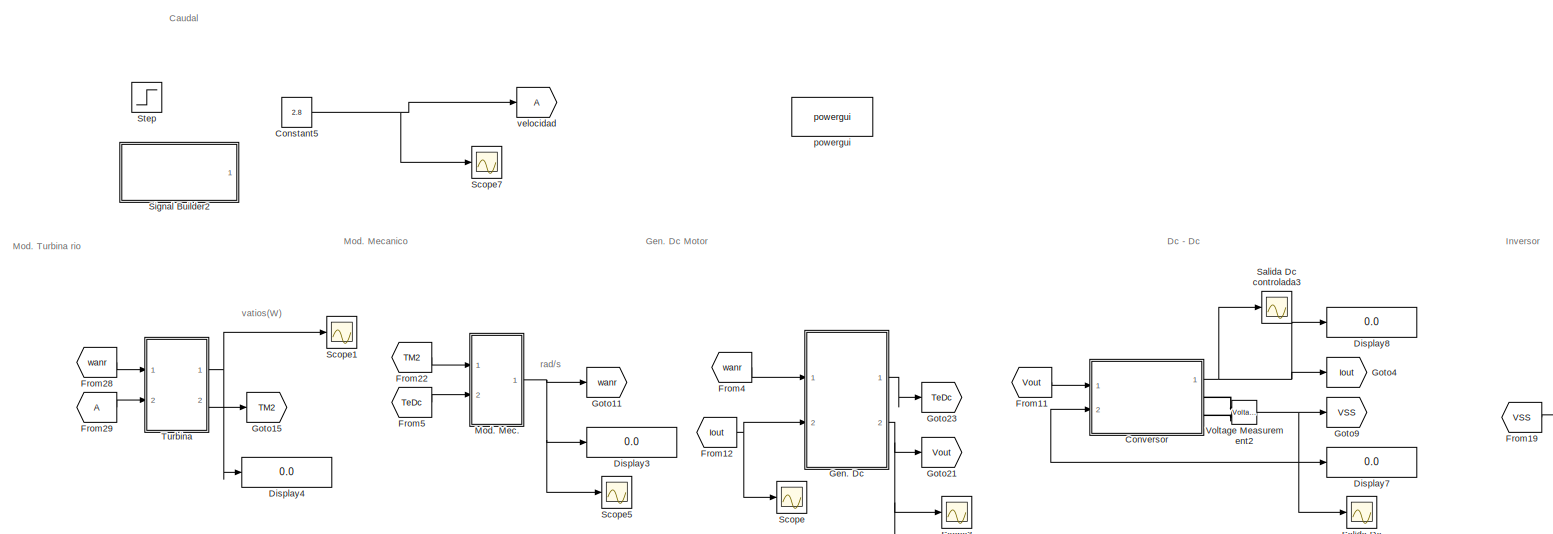
[diagram: root canvas - part 1/2, most of the canvas]
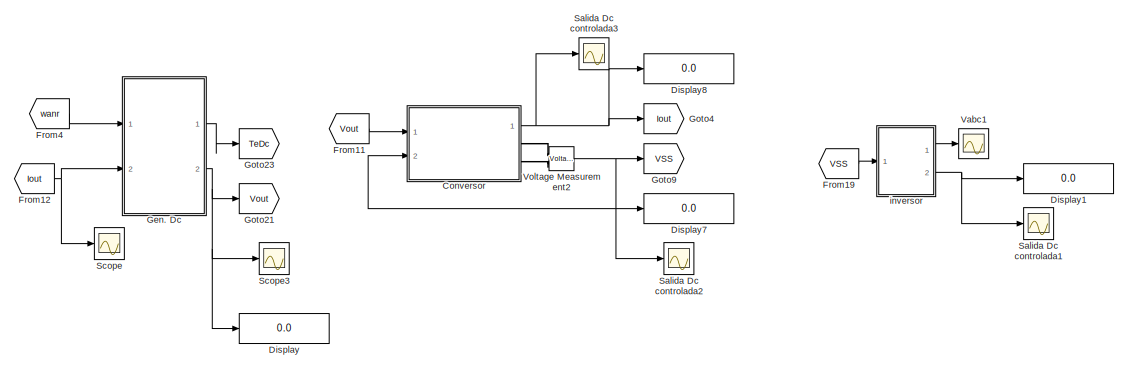
[diagram: root canvas - part 2/2, bottom right region]
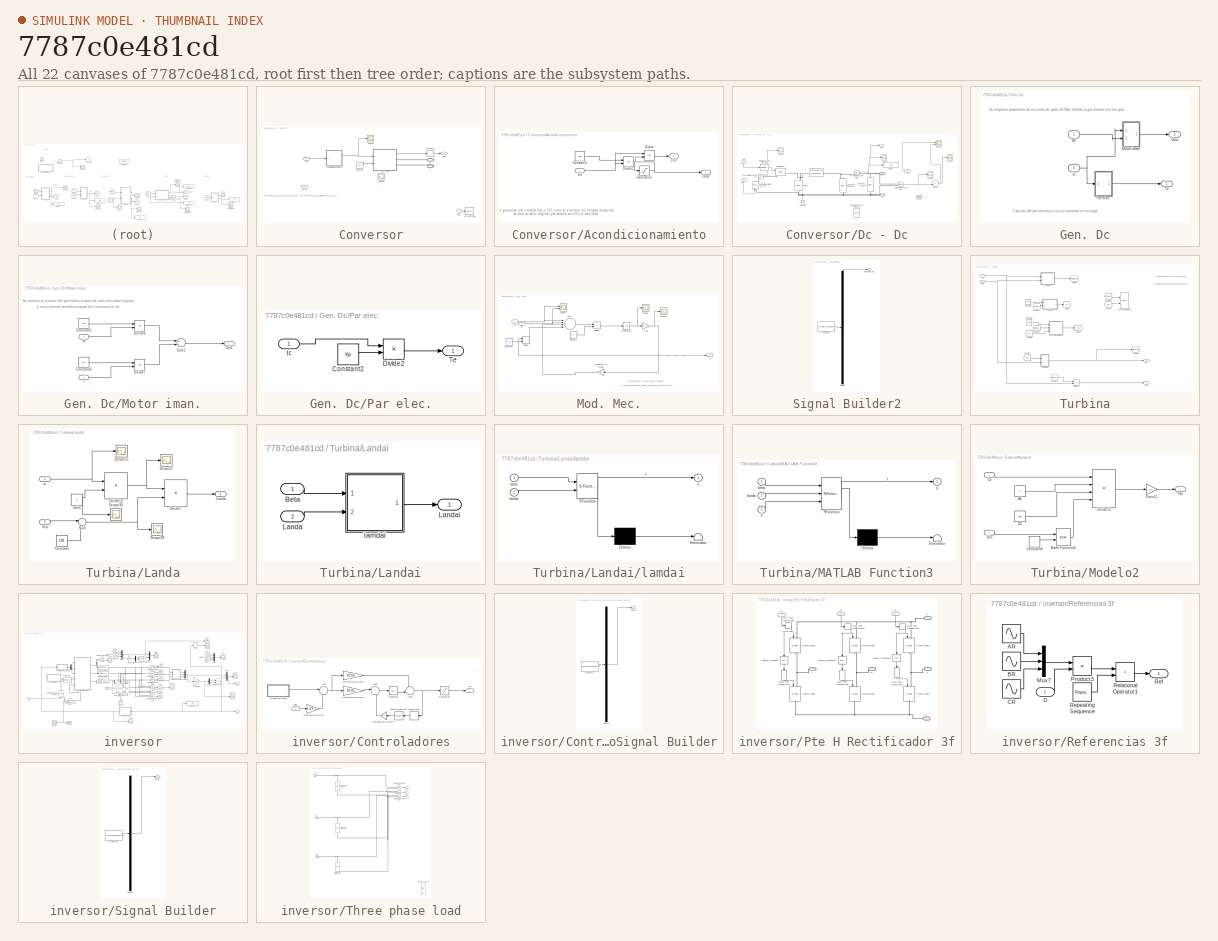
[diagram: thumbnail index - all 22 canvases of the model, root first then tree order]
MODEL slx_7787c0e481cd
KIND model
CONFIG AbsTol = auto
CONFIG EnableMultiTasking = off
CONFIG FixedStep = 50e-3
CONFIG MaxStep = 1e-4
CONFIG MinStep = auto
CONFIG RelTol = 1e-3
CONFIG SampleTimeConstraint = Unconstrained
CONFIG Solver = VariableStepAuto
CONFIG SolverName = VariableStepAuto
CONFIG StartTime = 0.0
CONFIG StopTime = 0.5
BLOCK [Constant] Constant5
  Value = 2.8
BLOCK [SubSystem] Conversor
  Ports = [2, 1, 0, 0, 0, 0, 2]
  RequestExecContextInheritance = off
  Variant = off
BLOCK [SubSystem] Conversor/Acondicionamiento
  Ports = [1, 2]
  RequestExecContextInheritance = off
  Variant = off
BLOCK [Outport] Conversor/Acondicionamiento/150
  IconDisplay = Port number
BLOCK [Constant] Conversor/Acondicionamiento/Constant1
  Value = 150
BLOCK [Product] Conversor/Acondicionamiento/Divide
  InputSameDT = off
  Inputs = **
  OutDataTypeStr = Inherit: Inherit via internal rule
  Ports = [2, 1]
  RndMeth = Floor
  SaturateOnIntegerOverflow = off
BLOCK [Product] Conversor/Acondicionamiento/Divide1
  InputSameDT = off
  Inputs = */
  OutDataTypeStr = Inherit: Inherit via internal rule
  Ports = [2, 1]
  RndMeth = Floor
  SaturateOnIntegerOverflow = off
BLOCK [Outport] Conversor/Acondicionamiento/Duty
  IconDisplay = Port number
  Port = 2
BLOCK [Saturate] Conversor/Acondicionamiento/Saturation
  InputPortMap = u0
  LowerLimit = 0
  Ports = [1, 1]
  UpperLimit = 1
BLOCK [Inport] Conversor/Acondicionamiento/Vin
  IconDisplay = Port number
BLOCK [Constant] Conversor/Constant
  Value = Dcc
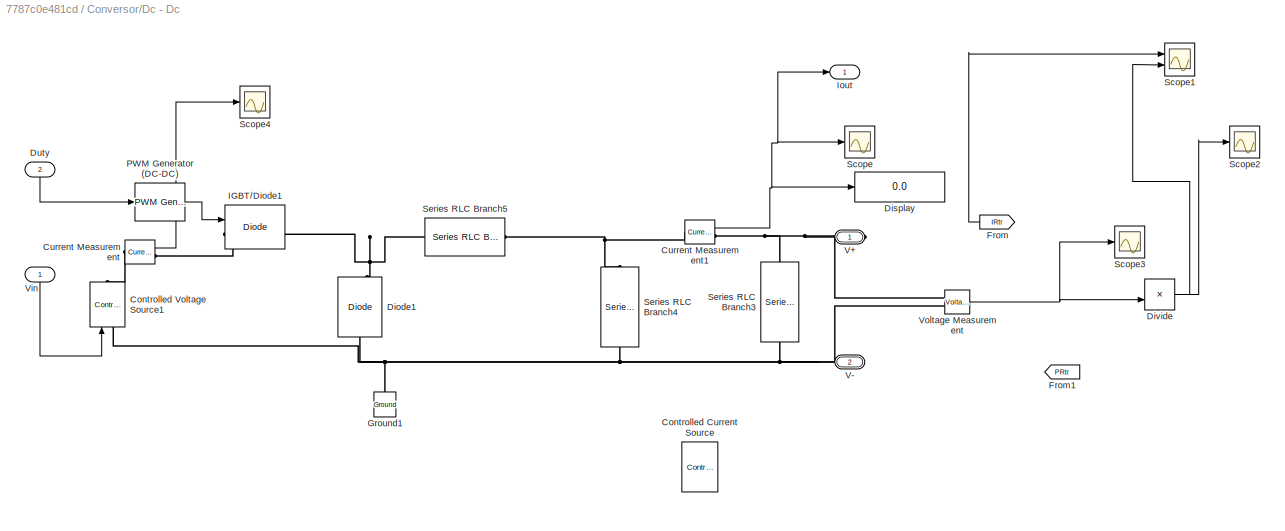
BLOCK [SubSystem] Conversor/Dc - Dc
  Ports = [2, 1, 0, 0, 0, 0, 2]
  RequestExecContextInheritance = off
  Variant = off
BLOCK [Reference] Conversor/Dc - Dc/Controlled Current Source  REF=powerlib/Electrical
Sources/Controlled Current Source
  Ports = [1, 0, 0, 0, 0, 1, 1]
  SourceBlock = powerlib/Electrical\nSources/Controlled Current Source
  SourceProductBaseCode = PS
  SourceProductName = Simscape Power Systems
  SourceType = Controlled Current Source
BLOCK [Reference] Conversor/Dc - Dc/Controlled Voltage Source1  REF=powerlib/Electrical
Sources/Controlled Voltage Source
  Ports = [1, 0, 0, 0, 0, 1, 1]
  SourceBlock = powerlib/Electrical\nSources/Controlled Voltage Source
  SourceProductBaseCode = PS
  SourceProductName = Simscape Power Systems
  SourceType = Controlled Voltage Source
BLOCK [Reference] Conversor/Dc - Dc/Current Measurement  REF=powerlib/Measurements/Current Measurement
  Ports = [0, 1, 0, 0, 0, 1, 1]
  SourceBlock = powerlib/Measurements/Current Measurement
  SourceProductBaseCode = PS
  SourceProductName = Simscape Power Systems
  SourceType = Current Measurement
  UserDataPersistent = on
BLOCK [Reference] Conversor/Dc - Dc/Current Measurement1  REF=powerlib/Measurements/Current Measurement
  Ports = [0, 1, 0, 0, 0, 1, 1]
  SourceBlock = powerlib/Measurements/Current Measurement
  SourceProductBaseCode = PS
  SourceProductName = Simscape Power Systems
  SourceType = Current Measurement
  UserDataPersistent = on
BLOCK [Reference] Conversor/Dc - Dc/Diode1  REF=powerlib/Power
Electronics/Diode
  Ports = [0, 1, 0, 0, 0, 1, 1]
  SourceBlock = powerlib/Power\nElectronics/Diode
  SourceProductBaseCode = PS
  SourceProductName = Simscape Power Systems
  SourceType = Diode
BLOCK [Display] Conversor/Dc - Dc/Display
  Decimation = 1
  Ports = [1]
BLOCK [Product] Conversor/Dc - Dc/Divide
  InputSameDT = off
  Inputs = */
  OutDataTypeStr = Inherit: Inherit via internal rule
  Ports = [2, 1]
  RndMeth = Floor
  SaturateOnIntegerOverflow = off
BLOCK [Inport] Conversor/Dc - Dc/Duty
  IconDisplay = Port number
  Port = 2
BLOCK [From] Conversor/Dc - Dc/From
  GotoTag = IRtr
BLOCK [From] Conversor/Dc - Dc/From1
  GotoTag = PRtr
BLOCK [Reference] Conversor/Dc - Dc/Ground1  REF=powerlib/Elements/Ground
  Ports = [0, 0, 0, 0, 0, 1]
  SourceBlock = powerlib/Elements/Ground
  SourceProductBaseCode = PS
  SourceProductName = Simscape Power Systems
  SourceType = Ground
BLOCK [Reference] Conversor/Dc - Dc/IGBT//Diode1  REF=powerlib/Power
Electronics/IGBT//Diode
  Ports = [1, 1, 0, 0, 0, 1, 1]
  SourceBlock = powerlib/Power\nElectronics/IGBT//Diode
  SourceProductBaseCode = PS
  SourceProductName = Simscape Power Systems
  SourceType = IGBT/Diode
BLOCK [Outport] Conversor/Dc - Dc/Iout
  IconDisplay = Port number
BLOCK [Reference] Conversor/Dc - Dc/PWM Generator (DC-DC)  REF=powerlib_meascontrol/Pulse & Signal
Generators/PWM Generator
(DC-DC)
  Ports = [1, 1]
  SourceBlock = powerlib_meascontrol/Pulse & Signal\nGenerators/PWM Generator\n(DC-DC)
  SourceProductBaseCode = PS
  SourceProductName = Simscape Power Systems
  SourceType = PWM Generator (DC-DC)
BLOCK [Scope] Conversor/Dc - Dc/Scope
  NumInputPorts = 1
  Ports = [1]
  ScopeSpecificationString = Simulink.scopes.TimeScopeBlockCfg('CurrentConfiguration', extmgr.ConfigurationSet(extmgr.Configuration('Core','General UI',true),extmgr.Configuration('Core','Source UI',true),extmgr.Configuration('Sources','WiredSimulink',true,'DataLoggingVariableName','ScopeData1'),extmgr.Configuration('Visuals','Time Domain',true,'SerializedDisplays',{struct('MinYLimReal','-0.08926','MaxYLimReal','0.80336','YLab...<+1379ch>
BLOCK [Scope] Conversor/Dc - Dc/Scope1
  NumInputPorts = 2
  Ports = [2]
  ScopeSpecificationString = Simulink.scopes.TimeScopeBlockCfg('CurrentConfiguration', extmgr.ConfigurationSet(extmgr.Configuration('Core','General UI',true),extmgr.Configuration('Core','Source UI',true),extmgr.Configuration('Sources','WiredSimulink',true,'DataLoggingVariableName','ScopeData2'),extmgr.Configuration('Visuals','Time Domain',true,'SerializedDisplays',{struct('MinYLimReal','-0.22862','MaxYLimReal','2.05754','YLab...<+1431ch>
BLOCK [Scope] Conversor/Dc - Dc/Scope2
  NumInputPorts = 1
  Ports = [1]
  ScopeSpecificationString = Simulink.scopes.TimeScopeBlockCfg('CurrentConfiguration', extmgr.ConfigurationSet(extmgr.Configuration('Core','General UI',true),extmgr.Configuration('Core','Source UI',true),extmgr.Configuration('Sources','WiredSimulink',true,'DataLoggingVariableName','ScopeData1'),extmgr.Configuration('Visuals','Time Domain',true,'SerializedDisplays',{struct('MinYLimReal','-0.11163','MaxYLimReal','1.00468','YLab...<+1439ch>
BLOCK [Scope] Conversor/Dc - Dc/Scope3
  NumInputPorts = 1
  Ports = [1]
  ScopeSpecificationString = Simulink.scopes.TimeScopeBlockCfg('CurrentConfiguration', extmgr.ConfigurationSet(extmgr.Configuration('Core','General UI',true),extmgr.Configuration('Core','Source UI',true),extmgr.Configuration('Sources','WiredSimulink',true,'DataLoggingVariableName','ScopeData7'),extmgr.Configuration('Visuals','Time Domain',true,'SerializedDisplays',{struct('MinYLimReal','-255.27426','MaxYLimReal','392.26636','...<+1436ch>
BLOCK [Scope] Conversor/Dc - Dc/Scope4
  NumInputPorts = 1
  Ports = [1]
  ScopeSpecificationString = Simulink.scopes.TimeScopeBlockCfg('CurrentConfiguration', extmgr.ConfigurationSet(extmgr.Configuration('Core','General UI',true),extmgr.Configuration('Core','Source UI',true),extmgr.Configuration('Sources','WiredSimulink',true,'DataLoggingVariableName','ScopeData8'),extmgr.Configuration('Visuals','Time Domain',true,'SerializedDisplays',{struct('MinYLimReal','-14.70113','MaxYLimReal','20.93646','YL...<+1428ch>
BLOCK [Reference] Conversor/Dc - Dc/Series RLC Branch3  REF=powerlib/Elements/Series RLC Branch
  Ports = [0, 0, 0, 0, 0, 1, 1]
  SourceBlock = powerlib/Elements/Series RLC Branch
  SourceProductBaseCode = PS
  SourceProductName = Simscape Power Systems
  SourceType = Series RLC Branch
BLOCK [Reference] Conversor/Dc - Dc/Series RLC Branch4  REF=powerlib/Elements/Series RLC Branch
  Ports = [0, 0, 0, 0, 0, 1, 1]
  SourceBlock = powerlib/Elements/Series RLC Branch
  SourceProductBaseCode = PS
  SourceProductName = Simscape Power Systems
  SourceType = Series RLC Branch
BLOCK [Reference] Conversor/Dc - Dc/Series RLC Branch5  REF=powerlib/Elements/Series RLC Branch
  Ports = [0, 0, 0, 0, 0, 1, 1]
  SourceBlock = powerlib/Elements/Series RLC Branch
  SourceProductBaseCode = PS
  SourceProductName = Simscape Power Systems
  SourceType = Series RLC Branch
BLOCK [PMIOPort] Conversor/Dc - Dc/V+
  Port = 1
  Side = Right
BLOCK [PMIOPort] Conversor/Dc - Dc/V-
  Port = 2
  Side = Right
BLOCK [Inport] Conversor/Dc - Dc/Vin
  IconDisplay = Port number
BLOCK [Reference] Conversor/Dc - Dc/Voltage Measurement  REF=powerlib/Measurements/Voltage Measurement
  Ports = [0, 1, 0, 0, 0, 2]
  SourceBlock = powerlib/Measurements/Voltage Measurement
  SourceProductBaseCode = PS
  SourceProductName = Simscape Power Systems
  SourceType = Voltage Measurement
  UserDataPersistent = on
BLOCK [Outport] Conversor/Iout
  IconDisplay = Port number
BLOCK [Memory] Conversor/Memory
BLOCK [Reference] Conversor/PID Controller  REF=simulink/Continuous/PID Controller
  Ports = [1, 1]
  SourceBlock = simulink/Continuous/PID Controller
  SourceProductBaseCode = SL
  SourceProductName = Simulink
  SourceType = PID 1dof
BLOCK [Scope] Conversor/Scope
  NumInputPorts = 1
  Ports = [1]
  ScopeSpecificationString = Simulink.scopes.TimeScopeBlockCfg('CurrentConfiguration', extmgr.ConfigurationSet(extmgr.Configuration('Core','General UI',true),extmgr.Configuration('Core','Source UI',true),extmgr.Configuration('Sources','WiredSimulink',true,'DataLoggingVariableName','ScopeData1'),extmgr.Configuration('Visuals','Time Domain',true,'SerializedDisplays',{struct('MinYLimReal','0.3111','MaxYLimReal','0.35064','YLabel...<+1381ch>
BLOCK [Scope] Conversor/Scope1
  NumInputPorts = 1
  Ports = [1]
  ScopeSpecificationString = Simulink.scopes.TimeScopeBlockCfg('CurrentConfiguration', extmgr.ConfigurationSet(extmgr.Configuration('Core','General UI',true),extmgr.Configuration('Core','Source UI',true),extmgr.Configuration('Sources','WiredSimulink',true,'DataLoggingVariableName','ScopeData1'),extmgr.Configuration('Visuals','Time Domain',true,'SerializedDisplays',{struct('MinYLimReal','51.00000','MaxYLimReal','161.00000','YL...<+1413ch>
BLOCK [Sum] Conversor/Sum
  IconShape = round
  InputSameDT = off
  Inputs = |+-
  OutDataTypeStr = Inherit: Inherit via internal rule
  Ports = [2, 1]
  SaturateOnIntegerOverflow = off
BLOCK [PMIOPort] Conversor/V+
  Port = 1
  Side = Right
BLOCK [PMIOPort] Conversor/V-
  Port = 2
  Side = Right
BLOCK [Inport] Conversor/Vin
  IconDisplay = Port number
BLOCK [Inport] Conversor/retro
  IconDisplay = Port number
  Port = 2
BLOCK [Display] Display
  Decimation = 1
  Ports = [1]
BLOCK [Display] Display1
  Commented = on
  Decimation = 1
  Ports = [1]
BLOCK [Display] Display3
  Decimation = 1
  Ports = [1]
BLOCK [Display] Display4
  Decimation = 1
  Ports = [1]
BLOCK [Display] Display7
  Decimation = 1
  Ports = [1]
BLOCK [Display] Display8
  Decimation = 1
  Ports = [1]
BLOCK [From] From11
  GotoTag = Vout
BLOCK [From] From12
  GotoTag = Iout
BLOCK [From] From19
  Commented = on
  GotoTag = VSS
BLOCK [From] From22
  GotoTag = TM2
BLOCK [From] From28
  GotoTag = wanr
BLOCK [From] From29
BLOCK [From] From4
  GotoTag = wanr
BLOCK [From] From5
  GotoTag = TeDc
BLOCK [SubSystem] Gen. Dc
  Ports = [2, 2]
  RequestExecContextInheritance = off
  Variant = off
BLOCK [Inport] Gen. Dc/Ic
  IconDisplay = Port number
  Port = 2
BLOCK [SubSystem] Gen. Dc/Motor iman.
  Ports = [2, 1]
  RequestExecContextInheritance = off
  Variant = off
BLOCK [Constant] Gen. Dc/Motor iman./Constant1
  Value = Kb
BLOCK [Constant] Gen. Dc/Motor iman./Constant2
  Value = Ri
BLOCK [Product] Gen. Dc/Motor iman./Divide6
  InputSameDT = off
  Inputs = **
  OutDataTypeStr = Inherit: Inherit via internal rule
  Ports = [2, 1]
BLOCK [Product] Gen. Dc/Motor iman./Divide7
  InputSameDT = off
  Inputs = **
  OutDataTypeStr = Inherit: Inherit via internal rule
  Ports = [2, 1]
BLOCK [Inport] Gen. Dc/Motor iman./I
  IconDisplay = Port number
BLOCK [Outport] Gen. Dc/Motor iman./Out1
  IconDisplay = Port number
BLOCK [Sum] Gen. Dc/Motor iman./Sum1
  InputSameDT = off
  OutDataTypeStr = Inherit: Inherit via internal rule
  Ports = [2, 1]
  SaturateOnIntegerOverflow = off
BLOCK [Inport] Gen. Dc/Motor iman./W
  IconDisplay = Port number
  Port = 2
BLOCK [SubSystem] Gen. Dc/Par elec.
  Ports = [1, 1]
  RequestExecContextInheritance = off
  Variant = off
BLOCK [Constant] Gen. Dc/Par elec./Constant2
  Value = Kp
BLOCK [Product] Gen. Dc/Par elec./Divide2
  InputSameDT = off
  Inputs = **
  OutDataTypeStr = Inherit: Inherit via internal rule
  Ports = [2, 1]
  RndMeth = Floor
  SaturateOnIntegerOverflow = off
BLOCK [Inport] Gen. Dc/Par elec./Ic
  IconDisplay = Port number
BLOCK [Outport] Gen. Dc/Par elec./Te
  IconDisplay = Port number
BLOCK [Outport] Gen. Dc/Te
  IconDisplay = Port number
BLOCK [Outport] Gen. Dc/Vout
  IconDisplay = Port number
  Port = 2
BLOCK [Inport] Gen. Dc/W
  IconDisplay = Port number
BLOCK [Goto] Goto11
  GotoTag = wanr
BLOCK [Goto] Goto15
  GotoTag = TM2
BLOCK [Goto] Goto21
  GotoTag = Vout
BLOCK [Goto] Goto23
  GotoTag = TeDc
BLOCK [Goto] Goto4
  GotoTag = Iout
BLOCK [Goto] Goto9
  GotoTag = VSS
BLOCK [SubSystem] Mod. Mec.
  Ports = [2, 1]
  RequestExecContextInheritance = off
  Variant = off
BLOCK [Constant] Mod. Mec./Constant3
  Value = T_d
BLOCK [Product] Mod. Mec./Divide2
  InputSameDT = off
  Inputs = **
  OutDataTypeStr = Inherit: Inherit via internal rule
  Ports = [2, 1]
  RndMeth = Floor
  SaturateOnIntegerOverflow = off
BLOCK [Product] Mod. Mec./Divide9
  InputSameDT = off
  Inputs = */
  OutDataTypeStr = Inherit: Inherit via internal rule
  Ports = [2, 1]
  RndMeth = Floor
  SaturateOnIntegerOverflow = off
BLOCK [Gain] Mod. Mec./Gain
  OutDataTypeStr = Inherit: Inherit via internal rule
  ParamDataTypeStr = Inherit: Inherit via internal rule
  SaturateOnIntegerOverflow = off
BLOCK [Integrator] Mod. Mec./Integrator6
  InitialCondition = 10
  Ports = [1, 1]
BLOCK [Gain] Mod. Mec./Oeficiente de friccion
  Gain = B
  OutDataTypeStr = Inherit: Inherit via internal rule
  ParamDataTypeStr = Inherit: Inherit via internal rule
  SaturateOnIntegerOverflow = off
BLOCK [Scope] Mod. Mec./Scope
  NumInputPorts = 1
  Ports = [1]
  ScopeSpecificationString = Simulink.scopes.TimeScopeBlockCfg('CurrentConfiguration', extmgr.ConfigurationSet(extmgr.Configuration('Core','General UI',true),extmgr.Configuration('Core','Source UI',true),extmgr.Configuration('Sources','WiredSimulink',true,'DataLoggingVariableName','ScopeData3'),extmgr.Configuration('Visuals','Time Domain',true,'SerializedDisplays',{struct('MinYLimReal','1.98121','MaxYLimReal','82.16908','YLab...<+1372ch>
BLOCK [Scope] Mod. Mec./Scope1
  NumInputPorts = 2
  Ports = [2]
  ScopeSpecificationString = Simulink.scopes.TimeScopeBlockCfg('CurrentConfiguration', extmgr.ConfigurationSet(extmgr.Configuration('Core','General UI',true),extmgr.Configuration('Core','Source UI',true),extmgr.Configuration('Sources','WiredSimulink',true,'DataLoggingVariableName','ScopeData4'),extmgr.Configuration('Visuals','Time Domain',true,'SerializedDisplays',{struct('MinYLimReal','-1.36328','MaxYLimReal','12.26955','YLa...<+1443ch>
BLOCK [Scope] Mod. Mec./Scope2
  NumInputPorts = 1
  Ports = [1]
  ScopeSpecificationString = Simulink.scopes.TimeScopeBlockCfg('CurrentConfiguration', extmgr.ConfigurationSet(extmgr.Configuration('Core','General UI',true),extmgr.Configuration('Core','Source UI',true),extmgr.Configuration('Sources','WiredSimulink',true,'DataLoggingVariableName','ScopeData5'),extmgr.Configuration('Visuals','Time Domain',true,'SerializedDisplays',{struct('MinYLimReal','1.86862','MaxYLimReal','83.18242','YLab...<+1365ch>
BLOCK [Sum] Mod. Mec./Sum4
  InputSameDT = off
  Inputs = |+---
  OutDataTypeStr = Inherit: Inherit via internal rule
  Ports = [4, 1]
  SaturateOnIntegerOverflow = off
BLOCK [Inport] Mod. Mec./Te
  IconDisplay = Port number
  Port = 2
BLOCK [Inport] Mod. Mec./Tm
  IconDisplay = Port number
BLOCK [Outport] Mod. Mec./W
  IconDisplay = Port number
BLOCK [Constant] Mod. Mec./inercia J
  Value = J
BLOCK [Scope] Salida Dc controlada1
  Commented = on
  NumInputPorts = 1
  Ports = [1]
  ScopeSpecificationString = Simulink.scopes.TimeScopeBlockCfg('CurrentConfiguration', extmgr.ConfigurationSet(extmgr.Configuration('Core','General UI',true,'FigureColor',[0.156862745098039 0.156862745098039 0.156862745098039]),extmgr.Configuration('Core','Source UI',true),extmgr.Configuration('Sources','WiredSimulink',true,'DataLoggingLimitDataPoints',true,'DataLoggingVariableName','ScopeData1','DataLoggingSaveFormat','Array...<+2833ch>
BLOCK [Scope] Salida Dc controlada2
  NumInputPorts = 1
  Ports = [1]
  ScopeSpecificationString = Simulink.scopes.TimeScopeBlockCfg('CurrentConfiguration', extmgr.ConfigurationSet(extmgr.Configuration('Core','General UI',true,'FigureColor',[0.156862745098039 0.156862745098039 0.156862745098039]),extmgr.Configuration('Core','Source UI',true),extmgr.Configuration('Sources','WiredSimulink',true,'DataLoggingLimitDataPoints',true,'DataLoggingVariableName','ScopeData1','DataLoggingSaveFormat','Array...<+2843ch>
BLOCK [Scope] Salida Dc controlada3
  NumInputPorts = 1
  Ports = [1]
  ScopeSpecificationString = Simulink.scopes.TimeScopeBlockCfg('CurrentConfiguration', extmgr.ConfigurationSet(extmgr.Configuration('Core','General UI',true,'FigureColor',[0.156862745098039 0.156862745098039 0.156862745098039]),extmgr.Configuration('Core','Source UI',true),extmgr.Configuration('Sources','WiredSimulink',true,'DataLoggingLimitDataPoints',true,'DataLoggingVariableName','ScopeData2','DataLoggingSaveFormat','Array...<+2820ch>
BLOCK [Scope] Scope
  NumInputPorts = 1
  Ports = [1]
  ScopeSpecificationString = Simulink.scopes.TimeScopeBlockCfg('CurrentConfiguration', extmgr.ConfigurationSet(extmgr.Configuration('Core','General UI',true),extmgr.Configuration('Core','Source UI',true),extmgr.Configuration('Sources','WiredSimulink',true,'DataLoggingVariableName','ScopeData1'),extmgr.Configuration('Visuals','Time Domain',true,'SerializedDisplays',{struct('MinYLimReal','-0.52904','MaxYLimReal','3.07102','YLab...<+1412ch>
BLOCK [Scope] Scope1
  NumInputPorts = 1
  Ports = [1]
  ScopeSpecificationString = Simulink.scopes.TimeScopeBlockCfg('CurrentConfiguration', extmgr.ConfigurationSet(extmgr.Configuration('Core','General UI',true,'FigureColor',[0.156862745098039 0.156862745098039 0.156862745098039]),extmgr.Configuration('Core','Source UI',true),extmgr.Configuration('Sources','WiredSimulink',true,'DataLoggingVariableName','ScopeData4','DataLoggingSaveFormat','StructureWithTime','DataLoggingDecimati...<+2818ch>
BLOCK [Scope] Scope3
  NumInputPorts = 1
  Ports = [1]
  ScopeSpecificationString = Simulink.scopes.TimeScopeBlockCfg('CurrentConfiguration', extmgr.ConfigurationSet(extmgr.Configuration('Core','General UI',true,'FigureColor',[0.156862745098039 0.156862745098039 0.156862745098039]),extmgr.Configuration('Core','Source UI',true),extmgr.Configuration('Sources','WiredSimulink',true,'DataLoggingVariableName','ScopeData2','DataLoggingSaveFormat','StructureWithTime','DataLoggingDecimati...<+2802ch>
BLOCK [Scope] Scope5
  NumInputPorts = 1
  Ports = [1]
  ScopeSpecificationString = Simulink.scopes.TimeScopeBlockCfg('CurrentConfiguration', extmgr.ConfigurationSet(extmgr.Configuration('Core','General UI',true,'FigureColor',[0.156862745098039 0.156862745098039 0.156862745098039]),extmgr.Configuration('Core','Source UI',true),extmgr.Configuration('Sources','WiredSimulink',true,'DataLoggingVariableName','ScopeData5','DataLoggingSaveFormat','StructureWithTime','DataLoggingDecimati...<+2806ch>
BLOCK [Scope] Scope7
  NumInputPorts = 1
  Ports = [1]
  ScopeSpecificationString = Simulink.scopes.TimeScopeBlockCfg('CurrentConfiguration', extmgr.ConfigurationSet(extmgr.Configuration('Core','General UI',true,'FigureColor',[1 1 1]),extmgr.Configuration('Core','Source UI',true),extmgr.Configuration('Sources','WiredSimulink',true,'DataLoggingVariableName','ScopeData6','DataLoggingSaveFormat','StructureWithTime','DataLoggingDecimation','1','DataLoggingDecimateData',true),extmgr.C...<+2585ch>
BLOCK [SubSystem] Signal Builder2
  ClipboardFcn = sigbuilder_block('clipboard');
  CloseFcn = sigbuilder_block('close');
  ContinueFcn = sigbuilder_block('continue');
  CopyFcn = sigbuilder_block('copy');
  DeleteFcn = sigbuilder_block('delete');
  LoadFcn = sigbuilder_block('load');
  MaskHideContents = on
  ModelCloseFcn = sigbuilder_block('modelClose');
  NameChangeFcn = sigbuilder_block('namechange');
  OpenFcn = sigbuilder_block('open',[197.25 66 550.5 359.25 ]);
  PauseFcn = sigbuilder_block('pause');
  Ports = [0, 1]
  PreSaveFcn = sigbuilder_block('preSave');
  RequestExecContextInheritance = off
  StartFcn = sigbuilder_block('start');
  StopFcn = sigbuilder_block('stop');
  Tag = STV Subsys
  Variant = off
BLOCK [Demux] Signal Builder2/Demux
  Outputs = 1
  Ports = [1, 1]
  Tag = STV Demux
BLOCK [FromWorkspace] Signal Builder2/FromWs
  SampleTime = 0
  Tag = STV FromWs
  VariableName = tuvar
  ZeroCross = on
BLOCK [Outport] Signal Builder2/Velocidad (m//s)
  IconDisplay = Port number
  Tag = STV Outport
BLOCK [Step] Step
  After = 2.888
  Before = 2.5
  SampleTime = 0
  Time = 10
BLOCK [SubSystem] Turbina
  Ports = [2, 2]
  RequestExecContextInheritance = off
  Variant = off
BLOCK [Constant] Turbina/Constant
  Value = beta
BLOCK [Constant] Turbina/Constant1
  Value = beta
BLOCK [Reference] Turbina/Curva cp vs landa  REF=simulink/Sinks/XY Graph
  Commented = on
  Ports = [2]
  SourceBlock = simulink/Sinks/XY Graph
  SourceProductBaseCode = SL
  SourceProductName = Simulink
  SourceType = XY scope.
BLOCK [Product] Turbina/Divide14
  InputSameDT = off
  Inputs = */
  OutDataTypeStr = Inherit: Inherit via internal rule
  Ports = [2, 1]
  RndMeth = Floor
  SaturateOnIntegerOverflow = off
BLOCK [From] Turbina/From12
  GotoTag = landa2
BLOCK [From] Turbina/From30
  GotoTag = Ii2
BLOCK [From] Turbina/From32
  GotoTag = landa2
BLOCK [From] Turbina/From33
  GotoTag = Cp2
BLOCK [From] Turbina/From41
  GotoTag = PW2R
BLOCK [From] Turbina/From7
  Commented = on
  GotoTag = Cp2
BLOCK [From] Turbina/From8
  Commented = on
  GotoTag = landa2
BLOCK [Goto] Turbina/Goto12
  GotoTag = landa2
BLOCK [Goto] Turbina/Goto13
  GotoTag = Cp2
BLOCK [Goto] Turbina/Goto18
  GotoTag = PW2R
BLOCK [Goto] Turbina/Goto5
  GotoTag = Ii2
BLOCK [SubSystem] Turbina/Landa
  Ports = [2, 1]
  RequestExecContextInheritance = off
  Variant = off
BLOCK [Constant] Turbina/Landa/Constant
  Value = 0.001
BLOCK [Product] Turbina/Landa/Divide12
  InputSameDT = off
  Inputs = **
  OutDataTypeStr = Inherit: Inherit via internal rule
  Ports = [2, 1]
  RndMeth = Floor
  SaturateOnIntegerOverflow = off
BLOCK [Product] Turbina/Landa/Divide7
  InputSameDT = off
  Inputs = */
  OutDataTypeStr = Inherit: Inherit via internal rule
  Ports = [2, 1]
  RndMeth = Floor
  SaturateOnIntegerOverflow = off
BLOCK [Outport] Turbina/Landa/Landa
  IconDisplay = Port number
BLOCK [Scope] Turbina/Landa/Scope35
  NumInputPorts = 1
  Ports = [1]
  ScopeSpecificationString = Simulink.scopes.TimeScopeBlockCfg('CurrentConfiguration', extmgr.ConfigurationSet(extmgr.Configuration('Core','General UI',true,'FigureColor',[0.156862745098039 0.156862745098039 0.156862745098039]),extmgr.Configuration('Core','Source UI',true),extmgr.Configuration('Sources','WiredSimulink',true,'DataLoggingVariableName','ScopeData3','DataLoggingSaveFormat','StructureWithTime','DataLoggingDecimati...<+2726ch>
BLOCK [Scope] Turbina/Landa/Scope36
  NumInputPorts = 1
  Ports = [1]
  ScopeSpecificationString = Simulink.scopes.TimeScopeBlockCfg('CurrentConfiguration', extmgr.ConfigurationSet(extmgr.Configuration('Core','General UI',true,'FigureColor',[0.156862745098039 0.156862745098039 0.156862745098039]),extmgr.Configuration('Core','Source UI',true),extmgr.Configuration('Sources','WiredSimulink',true,'DataLoggingVariableName','ScopeData4','DataLoggingSaveFormat','StructureWithTime','DataLoggingDecimati...<+2712ch>
BLOCK [Scope] Turbina/Landa/Scope37
  NumInputPorts = 1
  Ports = [1]
  ScopeSpecificationString = Simulink.scopes.TimeScopeBlockCfg('CurrentConfiguration', extmgr.ConfigurationSet(extmgr.Configuration('Core','General UI',true,'FigureColor',[0.156862745098039 0.156862745098039 0.156862745098039]),extmgr.Configuration('Core','Source UI',true),extmgr.Configuration('Sources','WiredSimulink',true,'DataLoggingVariableName','ScopeData5','DataLoggingSaveFormat','StructureWithTime','DataLoggingDecimati...<+2730ch>
BLOCK [Scope] Turbina/Landa/Scope38
  NumInputPorts = 1
  Ports = [1]
  ScopeSpecificationString = Simulink.scopes.TimeScopeBlockCfg('CurrentConfiguration', extmgr.ConfigurationSet(extmgr.Configuration('Core','General UI',true,'FigureColor',[0.156862745098039 0.156862745098039 0.156862745098039]),extmgr.Configuration('Core','Source UI',true),extmgr.Configuration('Sources','WiredSimulink',true,'DataLoggingVariableName','ScopeData6','DataLoggingSaveFormat','StructureWithTime','DataLoggingDecimati...<+2712ch>
BLOCK [Sum] Turbina/Landa/Sum
  IconShape = round
  InputSameDT = off
  Inputs = |++
  OutDataTypeStr = Inherit: Inherit via internal rule
  Ports = [2, 1]
  SaturateOnIntegerOverflow = off
BLOCK [Inport] Turbina/Landa/Vrio
  IconDisplay = Port number
  Port = 2
BLOCK [Constant] Turbina/Landa/radio
  Value = r
BLOCK [Inport] Turbina/Landa/w
  IconDisplay = Port number
BLOCK [SubSystem] Turbina/Landai
  Ports = [2, 1]
  RequestExecContextInheritance = off
  Variant = off
BLOCK [Inport] Turbina/Landai/Beta
  IconDisplay = Port number
BLOCK [Inport] Turbina/Landai/Landa
  IconDisplay = Port number
  Port = 2
BLOCK [Outport] Turbina/Landai/Landai
  IconDisplay = Port number
BLOCK [SubSystem] Turbina/Landai/lamdai
  ErrorFcn = Stateflow.Translate.translate
  PermitHierarchicalResolution = ExplicitOnly
  Ports = [2, 1]
  RequestExecContextInheritance = off
  SFBlockType = MATLAB Function
  TreatAsAtomicUnit = on
  Variant = off
BLOCK [Demux] Turbina/Landai/lamdai/ Demux 
  Outputs = 1
  Ports = [1, 1]
BLOCK [S-Function] Turbina/Landai/lamdai/ SFunction 
  EnableBusSupport = on
  FunctionName = sf_sfun
  PortCounts = [2 2]
  Ports = [2, 2]
  SFcnIsStateOwnerBlock = off
  SFunctionDeploymentMode = off
  Tag = Stateflow S-Function MODELODETURBINADERIOV9 3
BLOCK [Terminator] Turbina/Landai/lamdai/ Terminator 
BLOCK [Outport] Turbina/Landai/lamdai/Ii
  IconDisplay = Port number
BLOCK [Inport] Turbina/Landai/lamdai/beta
  IconDisplay = Port number
BLOCK [Inport] Turbina/Landai/lamdai/landa
  IconDisplay = Port number
  Port = 2
BLOCK [SubSystem] Turbina/MATLAB Function3
  ErrorFcn = Stateflow.Translate.translate
  PermitHierarchicalResolution = ExplicitOnly
  Ports = [3, 1]
  RequestExecContextInheritance = off
  SFBlockType = MATLAB Function
  TreatAsAtomicUnit = on
  Variant = off
BLOCK [Demux] Turbina/MATLAB Function3/ Demux 
  Outputs = 1
  Ports = [1, 1]
BLOCK [S-Function] Turbina/MATLAB Function3/ SFunction 
  EnableBusSupport = on
  FunctionName = sf_sfun
  PortCounts = [3 2]
  Ports = [3, 2]
  SFcnIsStateOwnerBlock = off
  SFunctionDeploymentMode = off
  Tag = Stateflow S-Function MODELODETURBINADERIOV9 2
BLOCK [Terminator] Turbina/MATLAB Function3/ Terminator 
BLOCK [Inport] Turbina/MATLAB Function3/Ii
  IconDisplay = Port number
  Port = 3
BLOCK [Inport] Turbina/MATLAB Function3/beta
  IconDisplay = Port number
BLOCK [Inport] Turbina/MATLAB Function3/landa
  IconDisplay = Port number
  Port = 2
BLOCK [Outport] Turbina/MATLAB Function3/y
  IconDisplay = Port number
BLOCK [SubSystem] Turbina/Modelo2
  Ports = [2, 1]
  RequestExecContextInheritance = off
  Variant = off
BLOCK [Constant] Turbina/Modelo2/A1
  Value = A
BLOCK [Constant] Turbina/Modelo2/Constant4
  Value = 3
BLOCK [Inport] Turbina/Modelo2/Cp
  IconDisplay = Port number
BLOCK [Constant] Turbina/Modelo2/D1
  Value = den
BLOCK [Product] Turbina/Modelo2/Divide13
  InputSameDT = off
  Inputs = ****
  OutDataTypeStr = Inherit: Inherit via internal rule
  Ports = [4, 1]
BLOCK [Gain] Turbina/Modelo2/Gain11
  Gain = 0.5
  OutDataTypeStr = Inherit: Inherit via internal rule
  ParamDataTypeStr = Inherit: Inherit via internal rule
  SaturateOnIntegerOverflow = off
BLOCK [Math] Turbina/Modelo2/Math Function6
  Operator = pow
  Ports = [2, 1]
BLOCK [Outport] Turbina/Modelo2/Pm
  IconDisplay = Port number
BLOCK [Inport] Turbina/Modelo2/Vrio
  IconDisplay = Port number
  Port = 2
BLOCK [Outport] Turbina/Pm
  IconDisplay = Port number
BLOCK [Outport] Turbina/Tm
  IconDisplay = Port number
  Port = 2
BLOCK [Inport] Turbina/Vrio
  IconDisplay = Port number
  Port = 2
BLOCK [Inport] Turbina/W
  IconDisplay = Port number
BLOCK [Scope] Vabc1
  Commented = on
  NumInputPorts = 1
  Ports = [1]
  ScopeSpecificationString = Simulink.scopes.TimeScopeBlockCfg('CurrentConfiguration', extmgr.ConfigurationSet(extmgr.Configuration('Core','General UI',true,'FigureColor',[0.156862745098039 0.156862745098039 0.156862745098039]),extmgr.Configuration('Core','Source UI',true),extmgr.Configuration('Sources','WiredSimulink',true,'DataLoggingVariableName','ScopeData1','DataLoggingSaveFormat','Structure','DataLoggingDecimation','D',...<+2895ch>
BLOCK [Reference] Voltage Measurement2  REF=powerlib/Measurements/Voltage Measurement
  Ports = [0, 1, 0, 0, 0, 2]
  SourceBlock = powerlib/Measurements/Voltage Measurement
  SourceProductBaseCode = PS
  SourceProductName = Simscape Power Systems
  SourceType = Voltage Measurement
  UserDataPersistent = on
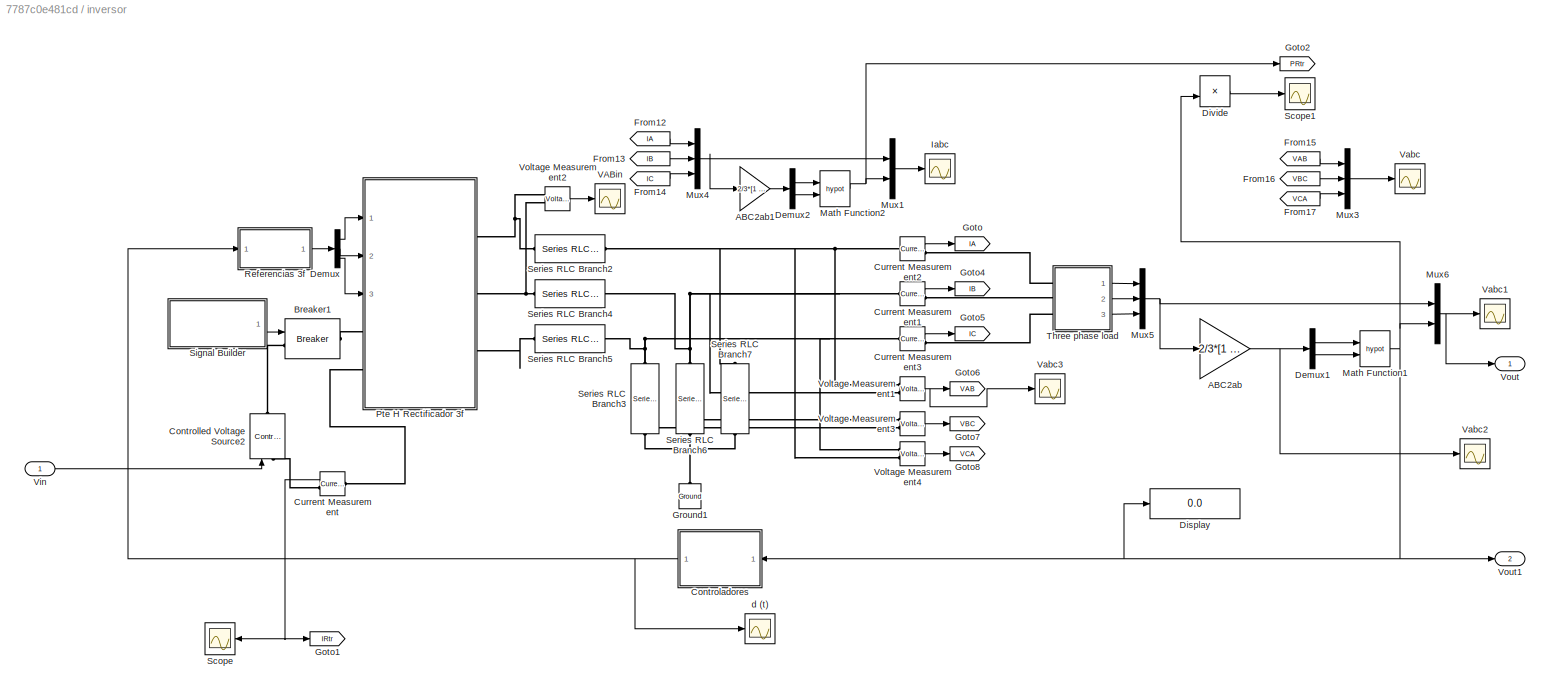
BLOCK [SubSystem] inversor
  Commented = on
  Ports = [1, 2]
  RequestExecContextInheritance = off
  Variant = off
BLOCK [Gain] inversor/ABC2ab
  Gain = 2/3*[1 -0.5 -0.5;0 sqrt(3)/2 -sqrt(3)/2]
  Multiplication = Matrix(K*u)
BLOCK [Gain] inversor/ABC2ab1
  Gain = 2/3*[1 -0.5 -0.5;0 sqrt(3)/2 -sqrt(3)/2]
  Multiplication = Matrix(K*u)
BLOCK [Reference] inversor/Breaker1  REF=powerlib/Elements/Breaker
  Ports = [1, 0, 0, 0, 0, 1, 1]
  SourceBlock = powerlib/Elements/Breaker
  SourceProductBaseCode = PS
  SourceProductName = Simscape Power Systems
  SourceType = Breaker
BLOCK [SubSystem] inversor/Controladores
  Ports = [1, 1]
  RequestExecContextInheritance = off
  Variant = off
BLOCK [Sum] inversor/Controladores/Add
  IconShape = round
  InputSameDT = off
  Inputs = |+-
  OutDataTypeStr = Inherit: Inherit via internal rule
  Ports = [2, 1]
  SaturateOnIntegerOverflow = off
BLOCK [Sum] inversor/Controladores/Add1
  IconShape = round
  InputSameDT = off
  Inputs = ++|
  OutDataTypeStr = Inherit: Inherit via internal rule
  Ports = [2, 1]
  SaturateOnIntegerOverflow = off
BLOCK [Sum] inversor/Controladores/Add2
  IconShape = round
  InputSameDT = off
  Inputs = |+-
  OutDataTypeStr = Inherit: Inherit via internal rule
  Ports = [2, 1]
  SaturateOnIntegerOverflow = off
BLOCK [DeadZone] inversor/Controladores/Dead Zone
  LowerValue = -1
  UpperValue = 1
BLOCK [Gain] inversor/Controladores/Derivative Divisor
  Gain = 1/39.2
BLOCK [Gain] inversor/Controladores/Derivative Divisor1
  Gain = K1Vo
BLOCK [Gain] inversor/Controladores/Derivative Divisor2
  Gain = K2Vo
BLOCK [Gain] inversor/Controladores/Derivative Divisor3
  Gain = 4
BLOCK [Integrator] inversor/Controladores/Integrator
  Ports = [1, 1]
BLOCK [Math] inversor/Controladores/Math Function1
  Operator = square
  Ports = [1, 1]
BLOCK [Saturate] inversor/Controladores/Saturation
  InputPortMap = u0
  LowerLimit = -1
  Ports = [1, 1]
  UpperLimit = 1
BLOCK [SubSystem] inversor/Controladores/Signal Builder
  ClipboardFcn = sigbuilder_block('clipboard');
  CloseFcn = sigbuilder_block('close');
  ContinueFcn = sigbuilder_block('continue')
  CopyFcn = sigbuilder_block('copy');
  DeleteFcn = sigbuilder_block('delete');
  LoadFcn = sigbuilder_block('load');
  MaskHideContents = on
  ModelCloseFcn = sigbuilder_block('modelClose');
  NameChangeFcn = sigbuilder_block('namechange');
  OpenFcn = sigbuilder_block('open',[6 24 765 492 ]);
  PauseFcn = sigbuilder_block('pause')
  Ports = [0, 1]
  PreSaveFcn = sigbuilder_block('preSave');
  RequestExecContextInheritance = off
  StartFcn = sigbuilder_block('start');
  StopFcn = sigbuilder_block('stop');
  Tag = STV Subsys
  Variant = off
BLOCK [Demux] inversor/Controladores/Signal Builder/Demux
  Outputs = 1
  Ports = [1, 1]
  Tag = STV Demux
BLOCK [FromWorkspace] inversor/Controladores/Signal Builder/FromWs
  SampleTime = 0
  Tag = STV FromWs
  VariableName = tuvar
  ZeroCross = on
BLOCK [Outport] inversor/Controladores/Signal Builder/Signal 1
  IconDisplay = Port number
  Tag = STV Outport
BLOCK [Inport] inversor/Controladores/abc
  IconDisplay = Port number
BLOCK [Outport] inversor/Controladores/cd
  IconDisplay = Port number
BLOCK [Reference] inversor/Controlled Voltage Source2  REF=powerlib/Electrical
Sources/Controlled Voltage Source
  Ports = [1, 0, 0, 0, 0, 1, 1]
  SourceBlock = powerlib/Electrical\nSources/Controlled Voltage Source
  SourceProductBaseCode = PS
  SourceProductName = Simscape Power Systems
  SourceType = Controlled Voltage Source
BLOCK [Reference] inversor/Current Measurement  REF=powerlib/Measurements/Current Measurement
  Ports = [0, 1, 0, 0, 0, 1, 1]
  SourceBlock = powerlib/Measurements/Current Measurement
  SourceProductBaseCode = PS
  SourceProductName = Simscape Power Systems
  SourceType = Current Measurement
  UserDataPersistent = on
BLOCK [Reference] inversor/Current Measurement1  REF=powerlib/Measurements/Current Measurement
  Ports = [0, 1, 0, 0, 0, 1, 1]
  SourceBlock = powerlib/Measurements/Current Measurement
  SourceProductBaseCode = PS
  SourceProductName = Simscape Power Systems
  SourceType = Current Measurement
BLOCK [Reference] inversor/Current Measurement2  REF=powerlib/Measurements/Current Measurement
  Ports = [0, 1, 0, 0, 0, 1, 1]
  SourceBlock = powerlib/Measurements/Current Measurement
  SourceProductBaseCode = PS
  SourceProductName = Simscape Power Systems
  SourceType = Current Measurement
BLOCK [Reference] inversor/Current Measurement3  REF=powerlib/Measurements/Current Measurement
  Ports = [0, 1, 0, 0, 0, 1, 1]
  SourceBlock = powerlib/Measurements/Current Measurement
  SourceProductBaseCode = PS
  SourceProductName = Simscape Power Systems
  SourceType = Current Measurement
BLOCK [Demux] inversor/Demux
  DisplayOption = bar
  Outputs = 3
  Ports = [1, 3]
BLOCK [Demux] inversor/Demux1
  Outputs = 2
  Ports = [1, 2]
BLOCK [Demux] inversor/Demux2
  Outputs = 2
  Ports = [1, 2]
BLOCK [Display] inversor/Display
  Decimation = 1
  Ports = [1]
BLOCK [Product] inversor/Divide
  InputSameDT = off
  Inputs = **
  OutDataTypeStr = Inherit: Inherit via internal rule
  Ports = [2, 1]
  RndMeth = Floor
  SaturateOnIntegerOverflow = off
BLOCK [From] inversor/From12
  CloseFcn = tagdialog Close
  GotoTag = IA
BLOCK [From] inversor/From13
  CloseFcn = tagdialog Close
  GotoTag = IB
BLOCK [From] inversor/From14
  CloseFcn = tagdialog Close
  GotoTag = IC
BLOCK [From] inversor/From15
  CloseFcn = tagdialog Close
  GotoTag = VAB
BLOCK [From] inversor/From16
  CloseFcn = tagdialog Close
  GotoTag = VBC
BLOCK [From] inversor/From17
  CloseFcn = tagdialog Close
  GotoTag = VCA
BLOCK [Goto] inversor/Goto
  GotoTag = IA
BLOCK [Goto] inversor/Goto1
  GotoTag = IRtr
  TagVisibility = global
BLOCK [Goto] inversor/Goto2
  GotoTag = PRtr
  TagVisibility = global
BLOCK [Goto] inversor/Goto4
  GotoTag = IB
BLOCK [Goto] inversor/Goto5
  GotoTag = IC
BLOCK [Goto] inversor/Goto6
  GotoTag = VAB
BLOCK [Goto] inversor/Goto7
  GotoTag = VBC
BLOCK [Goto] inversor/Goto8
  GotoTag = VCA
BLOCK [Reference] inversor/Ground1  REF=powerlib/Elements/Ground
  Ports = [0, 0, 0, 0, 0, 1]
  SourceBlock = powerlib/Elements/Ground
  SourceProductBaseCode = PS
  SourceProductName = Simscape Power Systems
  SourceType = Ground
BLOCK [Scope] inversor/Iabc
  NumInputPorts = 1
  Ports = [1]
  ScopeSpecificationString = Simulink.scopes.TimeScopeBlockCfg('CurrentConfiguration', extmgr.ConfigurationSet(extmgr.Configuration('Core','General UI',true,'FigureColor',[0.156862745098039 0.156862745098039 0.156862745098039]),extmgr.Configuration('Core','Source UI',true),extmgr.Configuration('Sources','WiredSimulink',true,'DataLoggingVariableName','ScopeData2','DataLoggingSaveFormat','Structure','DataLoggingDecimation','D',...<+2904ch>
BLOCK [Math] inversor/Math Function1
  Operator = hypot
  Ports = [2, 1]
BLOCK [Math] inversor/Math Function2
  Operator = hypot
  Ports = [2, 1]
BLOCK [Mux] inversor/Mux1
  DisplayOption = bar
  Inputs = 2
  Ports = [2, 1]
BLOCK [Mux] inversor/Mux3
  DisplayOption = bar
  Inputs = 3
  Ports = [3, 1]
BLOCK [Mux] inversor/Mux4
  DisplayOption = bar
  Inputs = 3
  Ports = [3, 1]
BLOCK [Mux] inversor/Mux5
  DisplayOption = bar
  Inputs = 3
  Ports = [3, 1]
BLOCK [Mux] inversor/Mux6
  DisplayOption = bar
  Inputs = 2
  Ports = [2, 1]
BLOCK [SubSystem] inversor/Pte H Rectificador 3f
  Ports = [3, 0, 0, 0, 0, 2, 3]
  RequestExecContextInheritance = off
  Variant = off
BLOCK [PMIOPort] inversor/Pte H Rectificador 3f/A
  Port = 1
  Side = Right
BLOCK [PMIOPort] inversor/Pte H Rectificador 3f/B
  Port = 2
  Side = Right
BLOCK [PMIOPort] inversor/Pte H Rectificador 3f/C
  Port = 3
  Side = Right
BLOCK [DataTypeConversion] inversor/Pte H Rectificador 3f/Data Type Conversion1
  RndMeth = Floor
  SaturateOnIntegerOverflow = off
BLOCK [DataTypeConversion] inversor/Pte H Rectificador 3f/Data Type Conversion2
  RndMeth = Floor
  SaturateOnIntegerOverflow = off
BLOCK [DataTypeConversion] inversor/Pte H Rectificador 3f/Data Type Conversion3
  RndMeth = Floor
  SaturateOnIntegerOverflow = off
BLOCK [DataTypeConversion] inversor/Pte H Rectificador 3f/Data Type Conversion4
  RndMeth = Floor
  SaturateOnIntegerOverflow = off
BLOCK [DataTypeConversion] inversor/Pte H Rectificador 3f/Data Type Conversion5
  RndMeth = Floor
  SaturateOnIntegerOverflow = off
BLOCK [DataTypeConversion] inversor/Pte H Rectificador 3f/Data Type Conversion6
  RndMeth = Floor
  SaturateOnIntegerOverflow = off
BLOCK [Reference] inversor/Pte H Rectificador 3f/IGBT//Diode1  REF=powerlib/Power
Electronics/IGBT//Diode
  Ports = [1, 0, 0, 0, 0, 1, 1]
  SourceBlock = powerlib/Power\nElectronics/IGBT//Diode
  SourceProductBaseCode = PS
  SourceProductName = Simscape Power Systems
  SourceType = IGBT/Diode
BLOCK [Reference] inversor/Pte H Rectificador 3f/IGBT//Diode2  REF=powerlib/Power
Electronics/IGBT//Diode
  Ports = [1, 0, 0, 0, 0, 1, 1]
  SourceBlock = powerlib/Power\nElectronics/IGBT//Diode
  SourceProductBaseCode = PS
  SourceProductName = Simscape Power Systems
  SourceType = IGBT/Diode
BLOCK [Reference] inversor/Pte H Rectificador 3f/IGBT//Diode3  REF=powerlib/Power
Electronics/IGBT//Diode
  Ports = [1, 0, 0, 0, 0, 1, 1]
  SourceBlock = powerlib/Power\nElectronics/IGBT//Diode
  SourceProductBaseCode = PS
  SourceProductName = Simscape Power Systems
  SourceType = IGBT/Diode
BLOCK [Reference] inversor/Pte H Rectificador 3f/IGBT//Diode4  REF=powerlib/Power
Electronics/IGBT//Diode
  Ports = [1, 0, 0, 0, 0, 1, 1]
  SourceBlock = powerlib/Power\nElectronics/IGBT//Diode
  SourceProductBaseCode = PS
  SourceProductName = Simscape Power Systems
  SourceType = IGBT/Diode
BLOCK [Reference] inversor/Pte H Rectificador 3f/IGBT//Diode5  REF=powerlib/Power
Electronics/IGBT//Diode
  Ports = [1, 0, 0, 0, 0, 1, 1]
  SourceBlock = powerlib/Power\nElectronics/IGBT//Diode
  SourceProductBaseCode = PS
  SourceProductName = Simscape Power Systems
  SourceType = IGBT/Diode
BLOCK [Reference] inversor/Pte H Rectificador 3f/IGBT//Diode6  REF=powerlib/Power
Electronics/IGBT//Diode
  Ports = [1, 0, 0, 0, 0, 1, 1]
  SourceBlock = powerlib/Power\nElectronics/IGBT//Diode
  SourceProductBaseCode = PS
  SourceProductName = Simscape Power Systems
  SourceType = IGBT/Diode
BLOCK [Inport] inversor/Pte H Rectificador 3f/L1
  IconDisplay = Port number
BLOCK [Inport] inversor/Pte H Rectificador 3f/L2
  IconDisplay = Port number
  Port = 2
BLOCK [Inport] inversor/Pte H Rectificador 3f/L3
  IconDisplay = Port number
  Port = 3
BLOCK [Logic] inversor/Pte H Rectificador 3f/Logical Operator
  AllPortsSameDT = off
  Operator = NOT
  OutDataTypeStr = boolean
  Ports = [1, 1]
BLOCK [Logic] inversor/Pte H Rectificador 3f/Logical Operator1
  AllPortsSameDT = off
  Operator = NOT
  OutDataTypeStr = boolean
  Ports = [1, 1]
BLOCK [Logic] inversor/Pte H Rectificador 3f/Logical Operator2
  AllPortsSameDT = off
  Operator = NOT
  OutDataTypeStr = boolean
  Ports = [1, 1]
BLOCK [PMIOPort] inversor/Pte H Rectificador 3f/V+
  Port = 4
  Side = Left
BLOCK [PMIOPort] inversor/Pte H Rectificador 3f/V-
  Port = 5
  Side = Left
BLOCK [SubSystem] inversor/Referencias 3f
  Ports = [1, 1]
  RequestExecContextInheritance = off
  Variant = off
BLOCK [Sin] inversor/Referencias 3f/AR
  Frequency = Fr*2*pi
  Ports = [0, 1]
  SampleTime = 0
BLOCK [Sin] inversor/Referencias 3f/BR
  Frequency = Fr*2*pi
  Phase = -2*pi/3
  Ports = [0, 1]
  SampleTime = 0
BLOCK [Sin] inversor/Referencias 3f/CR
  Frequency = Fr*2*pi
  Phase = 2*pi/3
  Ports = [0, 1]
  SampleTime = 0
BLOCK [Inport] inversor/Referencias 3f/D
  IconDisplay = Port number
BLOCK [Mux] inversor/Referencias 3f/Mux7
  DisplayOption = bar
  Inputs = 3
  Ports = [3, 1]
BLOCK [Product] inversor/Referencias 3f/Product3
  InputSameDT = off
  OutDataTypeStr = double
  Ports = [2, 1]
  SaturateOnIntegerOverflow = off
BLOCK [Outport] inversor/Referencias 3f/Ref
  IconDisplay = Port number
BLOCK [RelationalOperator] inversor/Referencias 3f/Relational Operator1
  InputSameDT = off
  Operator = >
  OutDataTypeStr = boolean
  Ports = [2, 1]
BLOCK [Reference] inversor/Referencias 3f/Repeating Sequence  REF=simulink/Sources/Repeating
Sequence
  Ports = [0, 1]
  SourceBlock = simulink/Sources/Repeating\nSequence
  SourceProductBaseCode = SL
  SourceProductName = Simulink
  SourceType = Repeating table
BLOCK [Scope] inversor/Scope
  NumInputPorts = 1
  Ports = [1]
  ScopeSpecificationString = Simulink.scopes.TimeScopeBlockCfg('CurrentConfiguration', extmgr.ConfigurationSet(extmgr.Configuration('Core','General UI',true),extmgr.Configuration('Core','Source UI',true),extmgr.Configuration('Sources','WiredSimulink',true,'DataLoggingVariableName','ScopeData1'),extmgr.Configuration('Visuals','Time Domain',true,'SerializedDisplays',{struct('MinYLimReal','-0.22862','MaxYLimReal','2.05754','YLab...<+1422ch>
BLOCK [Scope] inversor/Scope1
  NumInputPorts = 1
  Ports = [1]
  ScopeSpecificationString = Simulink.scopes.TimeScopeBlockCfg('CurrentConfiguration', extmgr.ConfigurationSet(extmgr.Configuration('Core','General UI',true),extmgr.Configuration('Core','Source UI',true),extmgr.Configuration('Sources','WiredSimulink',true,'DataLoggingVariableName','ScopeData6'),extmgr.Configuration('Visuals','Time Domain',true,'SerializedDisplays',{struct('MinYLimReal','-1.00000','MaxYLimReal','1.00000','YLab...<+1390ch>
BLOCK [Reference] inversor/Series RLC Branch2  REF=powerlib/Elements/Series RLC Branch
  Ports = [0, 0, 0, 0, 0, 1, 1]
  SourceBlock = powerlib/Elements/Series RLC Branch
  SourceProductBaseCode = PS
  SourceProductName = Simscape Power Systems
  SourceType = Series RLC Branch
BLOCK [Reference] inversor/Series RLC Branch3  REF=powerlib/Elements/Series RLC Branch
  Ports = [0, 0, 0, 0, 0, 1, 1]
  SourceBlock = powerlib/Elements/Series RLC Branch
  SourceProductBaseCode = PS
  SourceProductName = Simscape Power Systems
  SourceType = Series RLC Branch
BLOCK [Reference] inversor/Series RLC Branch4  REF=powerlib/Elements/Series RLC Branch
  Ports = [0, 0, 0, 0, 0, 1, 1]
  SourceBlock = powerlib/Elements/Series RLC Branch
  SourceProductBaseCode = PS
  SourceProductName = Simscape Power Systems
  SourceType = Series RLC Branch
BLOCK [Reference] inversor/Series RLC Branch5  REF=powerlib/Elements/Series RLC Branch
  Ports = [0, 0, 0, 0, 0, 1, 1]
  SourceBlock = powerlib/Elements/Series RLC Branch
  SourceProductBaseCode = PS
  SourceProductName = Simscape Power Systems
  SourceType = Series RLC Branch
BLOCK [Reference] inversor/Series RLC Branch6  REF=powerlib/Elements/Series RLC Branch
  Ports = [0, 0, 0, 0, 0, 1, 1]
  SourceBlock = powerlib/Elements/Series RLC Branch
  SourceProductBaseCode = PS
  SourceProductName = Simscape Power Systems
  SourceType = Series RLC Branch
BLOCK [Reference] inversor/Series RLC Branch7  REF=powerlib/Elements/Series RLC Branch
  Ports = [0, 0, 0, 0, 0, 1, 1]
  SourceBlock = powerlib/Elements/Series RLC Branch
  SourceProductBaseCode = PS
  SourceProductName = Simscape Power Systems
  SourceType = Series RLC Branch
BLOCK [SubSystem] inversor/Signal Builder
  ClipboardFcn = sigbuilder_block('clipboard');
  CloseFcn = sigbuilder_block('close');
  ContinueFcn = sigbuilder_block('continue')
  CopyFcn = sigbuilder_block('copy');
  DeleteFcn = sigbuilder_block('delete');
  LoadFcn = sigbuilder_block('load');
  MaskHideContents = on
  ModelCloseFcn = sigbuilder_block('modelClose');
  NameChangeFcn = sigbuilder_block('namechange');
  OpenFcn = sigbuilder_block('open',[437.25 117 550.5 399 ]);
  PauseFcn = sigbuilder_block('pause')
  Ports = [0, 1]
  PreSaveFcn = sigbuilder_block('preSave');
  RequestExecContextInheritance = off
  StartFcn = sigbuilder_block('start');
  StopFcn = sigbuilder_block('stop');
  Tag = STV Subsys
  Variant = off
BLOCK [Demux] inversor/Signal Builder/Demux
  Outputs = 1
  Ports = [1, 1]
  Tag = STV Demux
BLOCK [FromWorkspace] inversor/Signal Builder/FromWs
  SampleTime = 0
  Tag = STV FromWs
  VariableName = tuvar
  ZeroCross = on
BLOCK [Outport] inversor/Signal Builder/Signal 1
  IconDisplay = Port number
  Tag = STV Outport
BLOCK [SubSystem] inversor/Three phase load
  Ports = [0, 3, 0, 0, 0, 3]
  RequestExecContextInheritance = off
  Variant = off
BLOCK [PMIOPort] inversor/Three phase load/F1
  Port = 1
  Side = Left
BLOCK [PMIOPort] inversor/Three phase load/F2
  Port = 2
  Side = Left
BLOCK [PMIOPort] inversor/Three phase load/F3
  Port = 3
  Side = Left
BLOCK [Reference] inversor/Three phase load/Series RLC Branch3  REF=powerlib/Elements/Series RLC Branch
  Ports = [0, 0, 0, 0, 0, 1, 1]
  SourceBlock = powerlib/Elements/Series RLC Branch
  SourceProductBaseCode = PS
  SourceProductName = Simscape Power Systems
  SourceType = Series RLC Branch
BLOCK [Reference] inversor/Three phase load/Series RLC Branch4  REF=powerlib/Elements/Series RLC Branch
  Ports = [0, 0, 0, 0, 0, 1, 1]
  SourceBlock = powerlib/Elements/Series RLC Branch
  SourceProductBaseCode = PS
  SourceProductName = Simscape Power Systems
  SourceType = Series RLC Branch
BLOCK [Reference] inversor/Three phase load/Series RLC Branch8  REF=powerlib/Elements/Series RLC Branch
  Ports = [0, 0, 0, 0, 0, 1, 1]
  SourceBlock = powerlib/Elements/Series RLC Branch
  SourceProductBaseCode = PS
  SourceProductName = Simscape Power Systems
  SourceType = Series RLC Branch
BLOCK [Reference] inversor/Three phase load/Series RLC Load2  REF=powerlib/Elements/Series RLC Load
  AttributesFormatString = \n
  Ports = [0, 0, 0, 0, 0, 1, 1]
  SourceBlock = powerlib/Elements/Series RLC Load
  SourceProductBaseCode = PS
  SourceProductName = Simscape Power Systems
  SourceType = Series RLC Load
BLOCK [Outport] inversor/Three phase load/Van
  IconDisplay = Port number
BLOCK [Outport] inversor/Three phase load/Vbn
  IconDisplay = Port number
  Port = 2
BLOCK [Outport] inversor/Three phase load/Vcn
  IconDisplay = Port number
  Port = 3
BLOCK [Reference] inversor/Three phase load/Voltage Measurement1  REF=powerlib/Measurements/Voltage Measurement
  Ports = [0, 1, 0, 0, 0, 2]
  SourceBlock = powerlib/Measurements/Voltage Measurement
  SourceProductBaseCode = PS
  SourceProductName = Simscape Power Systems
  SourceType = Voltage Measurement
BLOCK [Reference] inversor/Three phase load/Voltage Measurement2  REF=powerlib/Measurements/Voltage Measurement
  Ports = [0, 1, 0, 0, 0, 2]
  SourceBlock = powerlib/Measurements/Voltage Measurement
  SourceProductBaseCode = PS
  SourceProductName = Simscape Power Systems
  SourceType = Voltage Measurement
BLOCK [Reference] inversor/Three phase load/Voltage Measurement3  REF=powerlib/Measurements/Voltage Measurement
  Ports = [0, 1, 0, 0, 0, 2]
  SourceBlock = powerlib/Measurements/Voltage Measurement
  SourceProductBaseCode = PS
  SourceProductName = Simscape Power Systems
  SourceType = Voltage Measurement
BLOCK [Scope] inversor/VABin
  NumInputPorts = 1
  Ports = [1]
  ScopeSpecificationString = Simulink.scopes.TimeScopeBlockCfg('CurrentConfiguration', extmgr.ConfigurationSet(extmgr.Configuration('Core','General UI',true,'FigureColor',[0.156862745098039 0.156862745098039 0.156862745098039]),extmgr.Configuration('Core','Source UI',true),extmgr.Configuration('Sources','WiredSimulink',true,'DataLoggingVariableName','ScopeData1','DataLoggingSaveFormat','Structure','DataLoggingDecimation','D',...<+2832ch>
BLOCK [Scope] inversor/Vabc
  NumInputPorts = 1
  Ports = [1]
  ScopeSpecificationString = Simulink.scopes.TimeScopeBlockCfg('CurrentConfiguration', extmgr.ConfigurationSet(extmgr.Configuration('Core','General UI',true,'FigureColor',[0.156862745098039 0.156862745098039 0.156862745098039]),extmgr.Configuration('Core','Source UI',true),extmgr.Configuration('Sources','WiredSimulink',true,'DataLoggingVariableName','ScopeData5','DataLoggingSaveFormat','Structure','DataLoggingDecimation','D',...<+2876ch>
BLOCK [Scope] inversor/Vabc1
  NumInputPorts = 1
  Ports = [1]
  ScopeSpecificationString = Simulink.scopes.TimeScopeBlockCfg('CurrentConfiguration', extmgr.ConfigurationSet(extmgr.Configuration('Core','General UI',true,'FigureColor',[0.156862745098039 0.156862745098039 0.156862745098039]),extmgr.Configuration('Core','Source UI',true),extmgr.Configuration('Sources','WiredSimulink',true,'DataLoggingVariableName','ScopeData3','DataLoggingSaveFormat','Structure','DataLoggingDecimation','D',...<+2905ch>
BLOCK [Scope] inversor/Vabc2
  NumInputPorts = 1
  Ports = [1]
  ScopeSpecificationString = Simulink.scopes.TimeScopeBlockCfg('CurrentConfiguration', extmgr.ConfigurationSet(extmgr.Configuration('Core','General UI',true,'FigureColor',[0.156862745098039 0.156862745098039 0.156862745098039]),extmgr.Configuration('Core','Source UI',true),extmgr.Configuration('Sources','WiredSimulink',true,'DataLoggingVariableName','ScopeData4','DataLoggingSaveFormat','Structure','DataLoggingDecimation','D',...<+2781ch>
BLOCK [Scope] inversor/Vabc3
  NumInputPorts = 1
  Ports = [1]
  ScopeSpecificationString = Simulink.scopes.TimeScopeBlockCfg('CurrentConfiguration', extmgr.ConfigurationSet(extmgr.Configuration('Core','General UI',true,'FigureColor',[0.156862745098039 0.156862745098039 0.156862745098039]),extmgr.Configuration('Core','Source UI',true),extmgr.Configuration('Sources','WiredSimulink',true,'DataLoggingVariableName','ScopeData3','DataLoggingSaveFormat','Structure','DataLoggingDecimation','D',...<+2830ch>
BLOCK [Inport] inversor/Vin
  IconDisplay = Port number
BLOCK [Reference] inversor/Voltage Measurement1  REF=powerlib/Measurements/Voltage Measurement
  Ports = [0, 1, 0, 0, 0, 2]
  SourceBlock = powerlib/Measurements/Voltage Measurement
  SourceProductBaseCode = PS
  SourceProductName = Simscape Power Systems
  SourceType = Voltage Measurement
BLOCK [Reference] inversor/Voltage Measurement2  REF=powerlib/Measurements/Voltage Measurement
  Ports = [0, 1, 0, 0, 0, 2]
  SourceBlock = powerlib/Measurements/Voltage Measurement
  SourceProductBaseCode = PS
  SourceProductName = Simscape Power Systems
  SourceType = Voltage Measurement
BLOCK [Reference] inversor/Voltage Measurement3  REF=powerlib/Measurements/Voltage Measurement
  Ports = [0, 1, 0, 0, 0, 2]
  SourceBlock = powerlib/Measurements/Voltage Measurement
  SourceProductBaseCode = PS
  SourceProductName = Simscape Power Systems
  SourceType = Voltage Measurement
BLOCK [Reference] inversor/Voltage Measurement4  REF=powerlib/Measurements/Voltage Measurement
  Ports = [0, 1, 0, 0, 0, 2]
  SourceBlock = powerlib/Measurements/Voltage Measurement
  SourceProductBaseCode = PS
  SourceProductName = Simscape Power Systems
  SourceType = Voltage Measurement
BLOCK [Outport] inversor/Vout
  IconDisplay = Port number
BLOCK [Outport] inversor/Vout1
  IconDisplay = Port number
  Port = 2
BLOCK [Scope] inversor/d (t)
  NumInputPorts = 1
  Ports = [1]
  ScopeSpecificationString = Simulink.scopes.TimeScopeBlockCfg('CurrentConfiguration', extmgr.ConfigurationSet(extmgr.Configuration('Core','General UI',true,'FigureColor',[0.156862745098039 0.156862745098039 0.156862745098039]),extmgr.Configuration('Core','Source UI',true),extmgr.Configuration('Sources','WiredSimulink',true,'DataLoggingVariableName','ScopeData6','DataLoggingSaveFormat','Structure','DataLoggingDecimation','D',...<+2822ch>
BLOCK [Reference] powergui  REF=powerlib/powergui
  Ports = []
  Priority = 1
  SourceBlock = powerlib/powergui
  SourceProductBaseCode = PS
  SourceProductName = Simscape Power Systems
  SourceType = PSB option menu block
BLOCK [Goto] velocidad
ANNOTATION (root): vatios(W)
ANNOTATION (root): Caudal
ANNOTATION (root): Dc - Dc
ANNOTATION (root): Gen. Dc Motor
ANNOTATION (root): Inversor
ANNOTATION (root): Mod. Mecanico
ANNOTATION (root): Mod. Turbina rio
ANNOTATION (root): rad/s
ANNOTATION Conversor: Se emplea un conversor de tipo buck y un control pi por simplicidad para garantizar los 150v
ANNOTATION Conversor/Acondicionamiento: Se garantiza una entrada fija a 150, pero si la tension de entrada desciende se deja su valor original y se calcula con ello el ciclo Duty
ANNOTATION Gen. Dc: Calculo del par electrico con la corriente en la carga
ANNOTATION Gen. Dc: Se emplean parametro de un motor dc para 18.5Kw debido a que fueron con los que mejor trabajo
ANNOTATION Gen. Dc/Motor iman.: Se obtiene la tension del generador a partir de una velocidad angular
ANNOTATION Gen. Dc/Motor iman.: y una corriente retroalimentada del conversor dc-dc
ANNOTATION Mod. Mec.: Se obtiene la velocidad angular del eje de la turbina de rio
ANNOTATION Mod. Mec.: Sumatoria de fuerzas del eje mecánico
ANNOTATION Turbina: Calculos turbina de rio (Cp, Landai, Landa,Pm)
ANNOTATION Turbina: Se obtiene la potencia mecanica de la turbina de rio
NET Constant5:1 -> Scope7:1, velocidad:1
LINE Conversor/Acondicionamiento/Constant1:1 -> Conversor/Acondicionamiento/Divide1:1
LINE Conversor/Acondicionamiento/Divide1:1 -> Conversor/Acondicionamiento/Saturation:1
LINE Conversor/Acondicionamiento/Divide:1 -> Conversor/Acondicionamiento/150:1
NET Conversor/Acondicionamiento/Saturation:1 -> Conversor/Acondicionamiento/Divide:2, Conversor/Acondicionamiento/Duty:1
NET Conversor/Acondicionamiento/Vin:1 -> Conversor/Acondicionamiento/Divide1:2, Conversor/Acondicionamiento/Divide:1
NET Conversor/Acondicionamiento:1 -> Conversor/Dc - Dc:1, Conversor/Scope1:1
LINE Conversor/Constant:1 -> Conversor/Dc - Dc:2
NET Conversor/Dc - Dc/Current Measurement1:1 -> Conversor/Dc - Dc/Display:1, Conversor/Dc - Dc/Iout:1, Conversor/Dc - Dc/Scope:1
LINE Conversor/Dc - Dc/Current Measurement:1 -> Conversor/Dc - Dc/Scope4:1
NET Conversor/Dc - Dc/Divide:1 -> Conversor/Dc - Dc/Scope1:2, Conversor/Dc - Dc/Scope2:1
LINE Conversor/Dc - Dc/Duty:1 -> Conversor/Dc - Dc/PWM Generator (DC-DC):1
LINE Conversor/Dc - Dc/From:1 -> Conversor/Dc - Dc/Scope1:1
LINE Conversor/Dc - Dc/PWM Generator (DC-DC):1 -> Conversor/Dc - Dc/IGBT//Diode1:1
LINE Conversor/Dc - Dc/Vin:1 -> Conversor/Dc - Dc/Controlled Voltage Source1:1
NET Conversor/Dc - Dc/Voltage Measurement:1 -> Conversor/Dc - Dc/Divide:2, Conversor/Dc - Dc/Scope3:1
LINE Conversor/Dc - Dc:1 -> Conversor/Memory:1
LINE Conversor/Memory:1 -> Conversor/Iout:1
LINE Conversor/Sum:1 -> Conversor/PID Controller:1
LINE Conversor/Vin:1 -> Conversor/Acondicionamiento:1
NET Conversor:1 -> Display8:1, Goto4:1, Salida Dc controlada3:1
LINE From11:1 -> Conversor:1
NET From12:1 -> Gen. Dc:2, Scope:1
LINE From19:1 -> inversor:1
LINE From22:1 -> Mod. Mec.:1
LINE From28:1 -> Turbina:1
LINE From29:1 -> Turbina:2
LINE From4:1 -> Gen. Dc:1
LINE From5:1 -> Mod. Mec.:2
NET Gen. Dc/Ic:1 -> Gen. Dc/Motor iman.:1, Gen. Dc/Par elec.:1
LINE Gen. Dc/Motor iman./Constant1:1 -> Gen. Dc/Motor iman./Divide6:1
LINE Gen. Dc/Motor iman./Constant2:1 -> Gen. Dc/Motor iman./Divide7:1
LINE Gen. Dc/Motor iman./Divide6:1 -> Gen. Dc/Motor iman./Sum1:1
LINE Gen. Dc/Motor iman./Divide7:1 -> Gen. Dc/Motor iman./Sum1:2
LINE Gen. Dc/Motor iman./I:1 -> Gen. Dc/Motor iman./Divide7:2
LINE Gen. Dc/Motor iman./Sum1:1 -> Gen. Dc/Motor iman./Out1:1
LINE Gen. Dc/Motor iman./W:1 -> Gen. Dc/Motor iman./Divide6:2
LINE Gen. Dc/Motor iman.:1 -> Gen. Dc/Vout:1
LINE Gen. Dc/Par elec./Constant2:1 -> Gen. Dc/Par elec./Divide2:2
LINE Gen. Dc/Par elec./Divide2:1 -> Gen. Dc/Par elec./Te:1
LINE Gen. Dc/Par elec./Ic:1 -> Gen. Dc/Par elec./Divide2:1
LINE Gen. Dc/Par elec.:1 -> Gen. Dc/Te:1
LINE Gen. Dc/W:1 -> Gen. Dc/Motor iman.:2
LINE Gen. Dc:1 -> Goto23:1
NET Gen. Dc:2 -> Display:1, Goto21:1, Scope3:1
LINE Mod. Mec./Constant3:1 -> Mod. Mec./Divide2:2
LINE Mod. Mec./Divide2:1 -> Mod. Mec./Sum4:4
LINE Mod. Mec./Divide9:1 -> Mod. Mec./Integrator6:1
NET Mod. Mec./Gain:1 -> Mod. Mec./Divide2:1, Mod. Mec./Oeficiente de friccion:1, Mod. Mec./Scope2:1, Mod. Mec./W:1
NET Mod. Mec./Integrator6:1 -> Mod. Mec./Gain:1, Mod. Mec./Scope:1
LINE Mod. Mec./Oeficiente de friccion:1 -> Mod. Mec./Sum4:3
LINE Mod. Mec./Sum4:1 -> Mod. Mec./Divide9:1
NET Mod. Mec./Te:1 -> Mod. Mec./Scope1:2, Mod. Mec./Sum4:2
NET Mod. Mec./Tm:1 -> Mod. Mec./Scope1:1, Mod. Mec./Sum4:1
LINE Mod. Mec./inercia J:1 -> Mod. Mec./Divide9:2
NET Mod. Mec.:1 -> Display3:1, Goto11:1, Scope5:1
LINE Turbina/Constant1:1 -> Turbina/MATLAB Function3:1
LINE Turbina/Constant:1 -> Turbina/Landai:1
LINE Turbina/Divide14:1 -> Turbina/Tm:1
LINE Turbina/From12:1 -> Turbina/Landai:2
LINE Turbina/From30:1 -> Turbina/MATLAB Function3:3
LINE Turbina/From32:1 -> Turbina/MATLAB Function3:2
LINE Turbina/From33:1 -> Turbina/Modelo2:1
LINE Turbina/From41:1 -> Turbina/Divide14:1
LINE Turbina/From7:1 -> Turbina/Curva cp vs landa:2
LINE Turbina/From8:1 -> Turbina/Curva cp vs landa:1
LINE Turbina/Landa/Constant:1 -> Turbina/Landa/Sum:2
NET Turbina/Landa/Divide12:1 -> Turbina/Landa/Divide7:1, Turbina/Landa/Scope37:1
LINE Turbina/Landa/Divide7:1 -> Turbina/Landa/Landa:1
NET Turbina/Landa/Sum:1 -> Turbina/Landa/Divide7:2, Turbina/Landa/Scope38:1
LINE Turbina/Landa/Vrio:1 -> Turbina/Landa/Sum:1
NET Turbina/Landa/radio:1 -> Turbina/Landa/Divide12:2, Turbina/Landa/Scope36:1
NET Turbina/Landa/w:1 -> Turbina/Landa/Divide12:1, Turbina/Landa/Scope35:1
LINE Turbina/Landa:1 -> Turbina/Goto12:1
LINE Turbina/Landai/Beta:1 -> Turbina/Landai/lamdai:1
LINE Turbina/Landai/Landa:1 -> Turbina/Landai/lamdai:2
LINE Turbina/Landai/lamdai:1 -> Turbina/Landai/Landai:1
LINE Turbina/Landai:1 -> Turbina/Goto5:1
LINE Turbina/MATLAB Function3:1 -> Turbina/Goto13:1
LINE Turbina/Modelo2/A1:1 -> Turbina/Modelo2/Divide13:2
LINE Turbina/Modelo2/Constant4:1 -> Turbina/Modelo2/Math Function6:2
LINE Turbina/Modelo2/Cp:1 -> Turbina/Modelo2/Divide13:1
LINE Turbina/Modelo2/D1:1 -> Turbina/Modelo2/Divide13:3
LINE Turbina/Modelo2/Divide13:1 -> Turbina/Modelo2/Gain11:1
LINE Turbina/Modelo2/Gain11:1 -> Turbina/Modelo2/Pm:1
LINE Turbina/Modelo2/Math Function6:1 -> Turbina/Modelo2/Divide13:4
LINE Turbina/Modelo2/Vrio:1 -> Turbina/Modelo2/Math Function6:1
NET Turbina/Modelo2:1 -> Turbina/Goto18:1, Turbina/Pm:1
NET Turbina/Vrio:1 -> Turbina/Landa:2, Turbina/Modelo2:2
NET Turbina/W:1 -> Turbina/Divide14:2, Turbina/Landa:1
NET Turbina:1 -> Display4:1, Scope1:1
LINE Turbina:2 -> Goto15:1
NET Voltage Measurement2:1 -> Conversor:2, Display7:1, Goto9:1, Salida Dc controlada2:1
LINE inversor/ABC2ab1:1 -> inversor/Demux2:1
NET inversor/ABC2ab:1 -> inversor/Demux1:1, inversor/Vabc2:1
NET inversor/Controladores/Add1:1 -> inversor/Controladores/Dead Zone:1, inversor/Controladores/Saturation:1
LINE inversor/Controladores/Add2:1 -> inversor/Controladores/Integrator:1
NET inversor/Controladores/Add:1 -> inversor/Controladores/Derivative Divisor1:1, inversor/Controladores/Derivative Divisor2:1
LINE inversor/Controladores/Dead Zone:1 -> inversor/Controladores/Math Function1:1
LINE inversor/Controladores/Derivative Divisor1:1 -> inversor/Controladores/Add2:1
LINE inversor/Controladores/Derivative Divisor2:1 -> inversor/Controladores/Add1:1
LINE inversor/Controladores/Derivative Divisor3:1 -> inversor/Controladores/Add2:2
LINE inversor/Controladores/Derivative Divisor:1 -> inversor/Controladores/Add:2
LINE inversor/Controladores/Integrator:1 -> inversor/Controladores/Add1:2
LINE inversor/Controladores/Math Function1:1 -> inversor/Controladores/Derivative Divisor3:1
LINE inversor/Controladores/Saturation:1 -> inversor/Controladores/cd:1
LINE inversor/Controladores/Signal Builder:1 -> inversor/Controladores/Add:1
LINE inversor/Controladores/abc:1 -> inversor/Controladores/Derivative Divisor:1
NET inversor/Controladores:1 -> inversor/Referencias 3f:1, inversor/d (t):1
LINE inversor/Current Measurement1:1 -> inversor/Goto4:1
LINE inversor/Current Measurement2:1 -> inversor/Goto:1
LINE inversor/Current Measurement3:1 -> inversor/Goto5:1
NET inversor/Current Measurement:1 -> inversor/Goto1:1, inversor/Scope:1
LINE inversor/Demux1:1 -> inversor/Math Function1:1
LINE inversor/Demux1:2 -> inversor/Math Function1:2
LINE inversor/Demux2:1 -> inversor/Math Function2:1
LINE inversor/Demux2:2 -> inversor/Math Function2:2
LINE inversor/Demux:1 -> inversor/Pte H Rectificador 3f:1
LINE inversor/Demux:2 -> inversor/Pte H Rectificador 3f:2
LINE inversor/Demux:3 -> inversor/Pte H Rectificador 3f:3
LINE inversor/Divide:1 -> inversor/Scope1:1
LINE inversor/From12:1 -> inversor/Mux4:1
LINE inversor/From13:1 -> inversor/Mux4:2
LINE inversor/From14:1 -> inversor/Mux4:3
LINE inversor/From15:1 -> inversor/Mux3:1
LINE inversor/From16:1 -> inversor/Mux3:2
LINE inversor/From17:1 -> inversor/Mux3:3
NET inversor/Math Function1:1 -> inversor/Controladores:1, inversor/Display:1, inversor/Divide:2, inversor/Mux6:2, inversor/Vout1:1
NET inversor/Math Function2:1 -> inversor/Goto2:1, inversor/Mux1:2
LINE inversor/Mux1:1 -> inversor/Iabc:1
LINE inversor/Mux3:1 -> inversor/Vabc:1
NET inversor/Mux4:1 -> inversor/ABC2ab1:1, inversor/Mux1:1
NET inversor/Mux5:1 -> inversor/ABC2ab:1, inversor/Mux6:1
NET inversor/Mux6:1 -> inversor/Vabc1:1, inversor/Vout:1
LINE inversor/Pte H Rectificador 3f/Data Type Conversion1:1 -> inversor/Pte H Rectificador 3f/IGBT//Diode2:1
NET inversor/Pte H Rectificador 3f/Data Type Conversion2:1 -> inversor/Pte H Rectificador 3f/IGBT//Diode1:1, inversor/Pte H Rectificador 3f/Logical Operator:1
NET inversor/Pte H Rectificador 3f/Data Type Conversion3:1 -> inversor/Pte H Rectificador 3f/IGBT//Diode3:1, inversor/Pte H Rectificador 3f/Logical Operator1:1
NET inversor/Pte H Rectificador 3f/Data Type Conversion4:1 -> inversor/Pte H Rectificador 3f/IGBT//Diode5:1, inversor/Pte H Rectificador 3f/Logical Operator2:1
LINE inversor/Pte H Rectificador 3f/Data Type Conversion5:1 -> inversor/Pte H Rectificador 3f/IGBT//Diode4:1
LINE inversor/Pte H Rectificador 3f/Data Type Conversion6:1 -> inversor/Pte H Rectificador 3f/IGBT//Diode6:1
LINE inversor/Pte H Rectificador 3f/L1:1 -> inversor/Pte H Rectificador 3f/Data Type Conversion2:1
LINE inversor/Pte H Rectificador 3f/L2:1 -> inversor/Pte H Rectificador 3f/Data Type Conversion3:1
LINE inversor/Pte H Rectificador 3f/L3:1 -> inversor/Pte H Rectificador 3f/Data Type Conversion4:1
LINE inversor/Pte H Rectificador 3f/Logical Operator1:1 -> inversor/Pte H Rectificador 3f/Data Type Conversion5:1
LINE inversor/Pte H Rectificador 3f/Logical Operator2:1 -> inversor/Pte H Rectificador 3f/Data Type Conversion6:1
LINE inversor/Pte H Rectificador 3f/Logical Operator:1 -> inversor/Pte H Rectificador 3f/Data Type Conversion1:1
LINE inversor/Referencias 3f/AR:1 -> inversor/Referencias 3f/Mux7:1
LINE inversor/Referencias 3f/BR:1 -> inversor/Referencias 3f/Mux7:2
LINE inversor/Referencias 3f/CR:1 -> inversor/Referencias 3f/Mux7:3
LINE inversor/Referencias 3f/D:1 -> inversor/Referencias 3f/Product3:2
LINE inversor/Referencias 3f/Mux7:1 -> inversor/Referencias 3f/Product3:1
LINE inversor/Referencias 3f/Product3:1 -> inversor/Referencias 3f/Relational Operator1:1
LINE inversor/Referencias 3f/Relational Operator1:1 -> inversor/Referencias 3f/Ref:1
LINE inversor/Referencias 3f/Repeating Sequence:1 -> inversor/Referencias 3f/Relational Operator1:2
LINE inversor/Referencias 3f:1 -> inversor/Demux:1
LINE inversor/Signal Builder:1 -> inversor/Breaker1:1
LINE inversor/Three phase load/Voltage Measurement1:1 -> inversor/Three phase load/Van:1
LINE inversor/Three phase load/Voltage Measurement2:1 -> inversor/Three phase load/Vbn:1
LINE inversor/Three phase load/Voltage Measurement3:1 -> inversor/Three phase load/Vcn:1
LINE inversor/Three phase load:1 -> inversor/Mux5:1
LINE inversor/Three phase load:2 -> inversor/Mux5:2
LINE inversor/Three phase load:3 -> inversor/Mux5:3
LINE inversor/Vin:1 -> inversor/Controlled Voltage Source2:1
NET inversor/Voltage Measurement1:1 -> inversor/Goto6:1, inversor/Vabc3:1
LINE inversor/Voltage Measurement2:1 -> inversor/VABin:1
LINE inversor/Voltage Measurement3:1 -> inversor/Goto7:1
LINE inversor/Voltage Measurement4:1 -> inversor/Goto8:1
LINE inversor:1 -> Vabc1:1
NET inversor:2 -> Display1:1, Salida Dc controlada1:1
PNET net1: Conversor/Dc - Dc/Controlled Voltage Source1:LConn1 -- Conversor/Dc - Dc/Diode1:LConn1 -- Conversor/Dc - Dc/Ground1:LConn1 -- Conversor/Dc - Dc/Series RLC Branch3:RConn1 -- Conversor/Dc - Dc/Series RLC Branch4:RConn1 -- Conversor/Dc - Dc/V-:RConn1 -- Conversor/Dc - Dc/Voltage Measurement:LConn2
PLINE Conversor/Dc - Dc/Controlled Voltage Source1:RConn1 -- Conversor/Dc - Dc/Current Measurement:LConn1
PNET net2: Conversor/Dc - Dc/Current Measurement1:LConn1 -- Conversor/Dc - Dc/Series RLC Branch4:LConn1 -- Conversor/Dc - Dc/Series RLC Branch5:LConn1
PNET net3: Conversor/Dc - Dc/Current Measurement1:RConn1 -- Conversor/Dc - Dc/Series RLC Branch3:LConn1 -- Conversor/Dc - Dc/V+:RConn1 -- Conversor/Dc - Dc/Voltage Measurement:LConn1
PLINE Conversor/Dc - Dc/Current Measurement:RConn1 -- Conversor/Dc - Dc/IGBT//Diode1:LConn1
PNET net4: Conversor/Dc - Dc/Diode1:RConn1 -- Conversor/Dc - Dc/IGBT//Diode1:RConn1 -- Conversor/Dc - Dc/Series RLC Branch5:RConn1
PLINE Conversor/Dc - Dc:RConn1 -- Conversor/V+:RConn1
PLINE Conversor/Dc - Dc:RConn2 -- Conversor/V-:RConn1
PLINE Conversor:RConn1 -- Voltage Measurement2:LConn1
PLINE Conversor:RConn2 -- Voltage Measurement2:LConn2
PLINE inversor/Breaker1:LConn1 -- inversor/Controlled Voltage Source2:RConn1
PLINE inversor/Breaker1:RConn1 -- inversor/Pte H Rectificador 3f:LConn1
PLINE inversor/Controlled Voltage Source2:LConn1 -- inversor/Current Measurement:RConn1
PNET net5: inversor/Current Measurement1:LConn1 -- inversor/Series RLC Branch4:RConn1 -- inversor/Series RLC Branch6:LConn1 -- inversor/Voltage Measurement1:LConn2 -- inversor/Voltage Measurement3:LConn1
PLINE inversor/Current Measurement1:RConn1 -- inversor/Three phase load:LConn2
PNET net6: inversor/Current Measurement2:LConn1 -- inversor/Series RLC Branch2:RConn1 -- inversor/Series RLC Branch7:LConn1 -- inversor/Voltage Measurement1:LConn1 -- inversor/Voltage Measurement4:LConn2
PLINE inversor/Current Measurement2:RConn1 -- inversor/Three phase load:LConn1
PNET net7: inversor/Current Measurement3:LConn1 -- inversor/Series RLC Branch3:LConn1 -- inversor/Series RLC Branch5:RConn1 -- inversor/Voltage Measurement3:LConn2 -- inversor/Voltage Measurement4:LConn1
PLINE inversor/Current Measurement3:RConn1 -- inversor/Three phase load:LConn3
PLINE inversor/Current Measurement:LConn1 -- inversor/Pte H Rectificador 3f:LConn2
PLINE inversor/Ground1:LConn1 -- inversor/Series RLC Branch3:RConn1
PNET net8: inversor/Pte H Rectificador 3f/A:RConn1 -- inversor/Pte H Rectificador 3f/IGBT//Diode1:RConn1 -- inversor/Pte H Rectificador 3f/IGBT//Diode2:LConn1
PNET net9: inversor/Pte H Rectificador 3f/B:RConn1 -- inversor/Pte H Rectificador 3f/IGBT//Diode3:RConn1 -- inversor/Pte H Rectificador 3f/IGBT//Diode4:LConn1
PNET net10: inversor/Pte H Rectificador 3f/C:RConn1 -- inversor/Pte H Rectificador 3f/IGBT//Diode5:RConn1 -- inversor/Pte H Rectificador 3f/IGBT//Diode6:LConn1
PNET net11: inversor/Pte H Rectificador 3f/IGBT//Diode1:LConn1 -- inversor/Pte H Rectificador 3f/IGBT//Diode3:LConn1 -- inversor/Pte H Rectificador 3f/IGBT//Diode5:LConn1 -- inversor/Pte H Rectificador 3f/V+:RConn1
PNET net12: inversor/Pte H Rectificador 3f/IGBT//Diode2:RConn1 -- inversor/Pte H Rectificador 3f/IGBT//Diode4:RConn1 -- inversor/Pte H Rectificador 3f/IGBT//Diode6:RConn1 -- inversor/Pte H Rectificador 3f/V-:RConn1
PNET net13: inversor/Pte H Rectificador 3f:RConn1 -- inversor/Series RLC Branch2:LConn1 -- inversor/Voltage Measurement2:LConn1
PNET net14: inversor/Pte H Rectificador 3f:RConn2 -- inversor/Series RLC Branch4:LConn1 -- inversor/Voltage Measurement2:LConn2
PLINE inversor/Pte H Rectificador 3f:RConn3 -- inversor/Series RLC Branch5:LConn1
PLINE inversor/Series RLC Branch6:RConn1 -- inversor/Series RLC Branch7:RConn1
PNET net15: inversor/Three phase load/F1:RConn1 -- inversor/Three phase load/Series RLC Branch4:LConn1 -- inversor/Three phase load/Voltage Measurement1:LConn1
PNET net16: inversor/Three phase load/F2:RConn1 -- inversor/Three phase load/Series RLC Branch3:LConn1 -- inversor/Three phase load/Voltage Measurement2:LConn1
PNET net17: inversor/Three phase load/F3:RConn1 -- inversor/Three phase load/Series RLC Branch8:LConn1 -- inversor/Three phase load/Voltage Measurement3:LConn1
PNET net18: inversor/Three phase load/Series RLC Branch3:RConn1 -- inversor/Three phase load/Series RLC Branch4:RConn1 -- inversor/Three phase load/Series RLC Branch8:RConn1 -- inversor/Three phase load/Voltage Measurement1:LConn2 -- inversor/Three phase load/Voltage Measurement2:LConn2 -- inversor/Three phase load/Voltage Measurement3:LConn2
note: NET lines group one-source signal fan-out (src -> all destinations, sorted); 1:1 wires keep LINE; PNET lines group multi-terminal physical nets as a canonical sorted terminal list (undirected conserving connections); 2-terminal nets keep the pairwise PLINE form
CHART Turbina/MATLAB Function3 states=1 transitions=1
  STATE_LABEL 'eML_blk_kernel()'
  STATE_LABEL 'SCRIPT:\nfunction y = fcn(beta, landa,Ii)\nw=0.5176; \nw1=116/Ii;\n w2=0.4*beta;\n w3=exp(-21/Ii);\n \n cp=w*(w1-w2-5)*w3+0.0068*landa;\n \n \n \n \n \ny=cp;\n \n '
CHART Turbina/Landai/lamdai states=1 transitions=1
  STATE_LABEL 'eML_blk_kernel()'
  STATE_LABEL 'SCRIPT:\nfunction Ii = fcn(beta,landa)\n\n\nIii=(1/((landa+(0.08*beta))))-((0.035)/((beta^3)+1));\nIi=1/Iii;'
